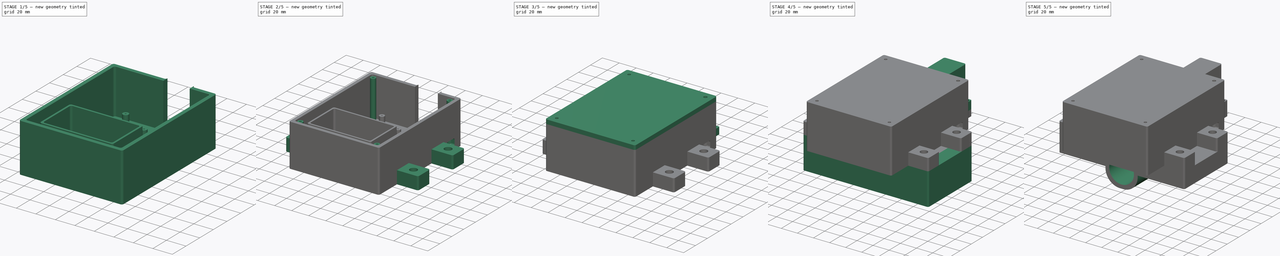
[diagram: build sequence overview — one tinted view per stage of 5, left to right]
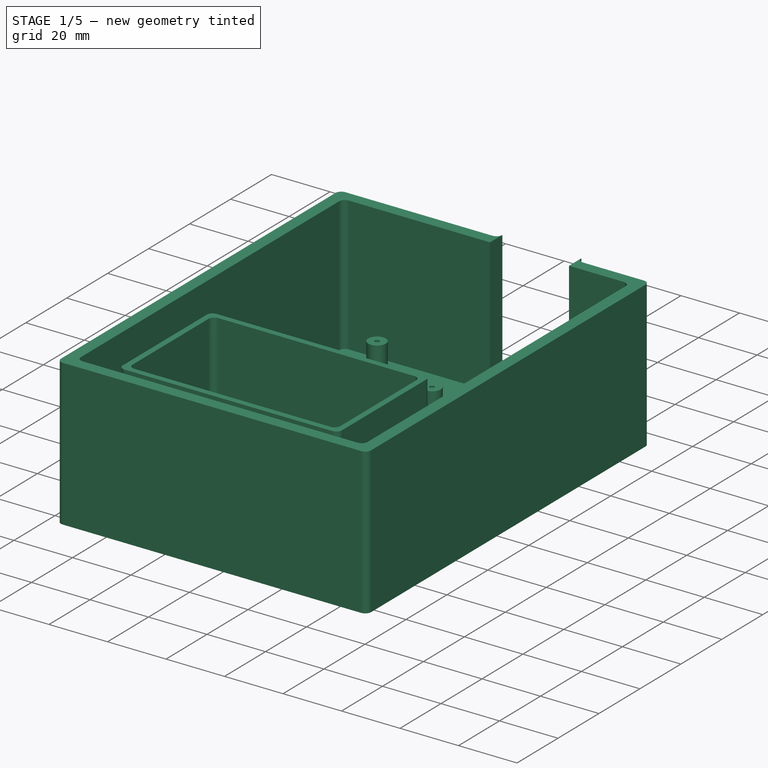
[diagram: stage 1 of 5 — iso view after this stage's code; geometry added in this stage tinted green]
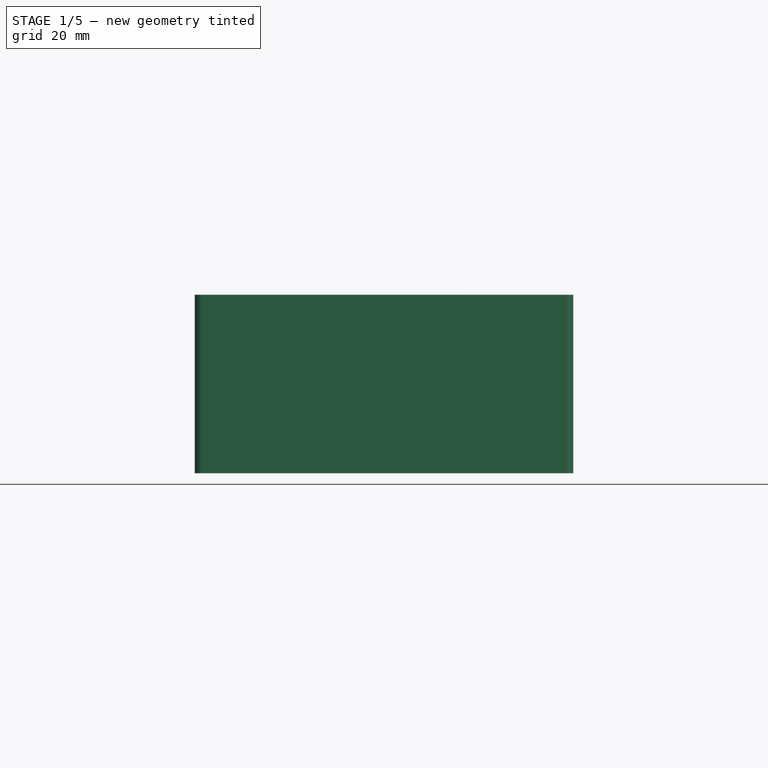
[diagram: stage 1 of 5 — front view after this stage's code; geometry added in this stage tinted green]
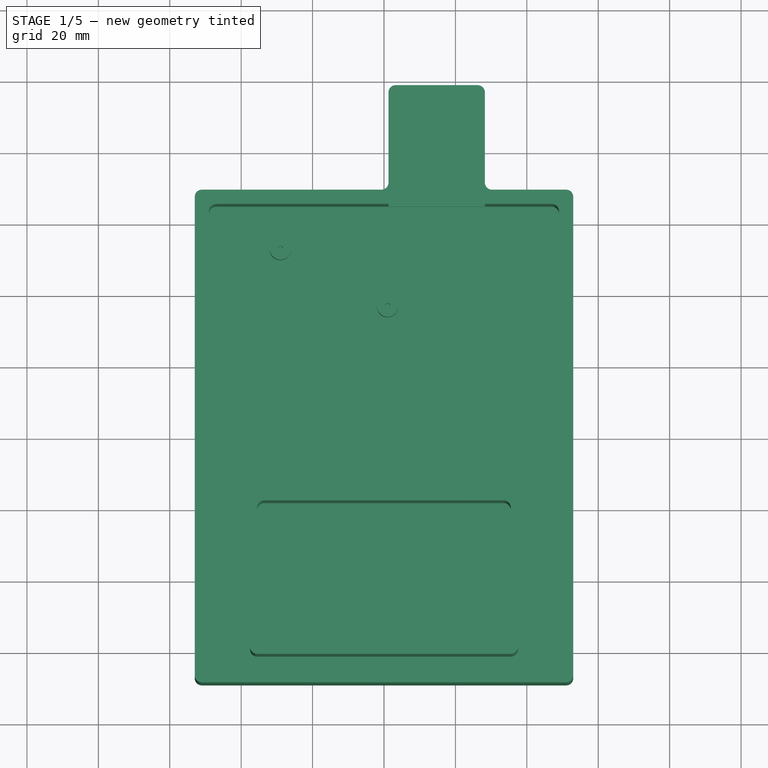
[diagram: stage 1 of 5 — top view after this stage's code; geometry added in this stage tinted green]
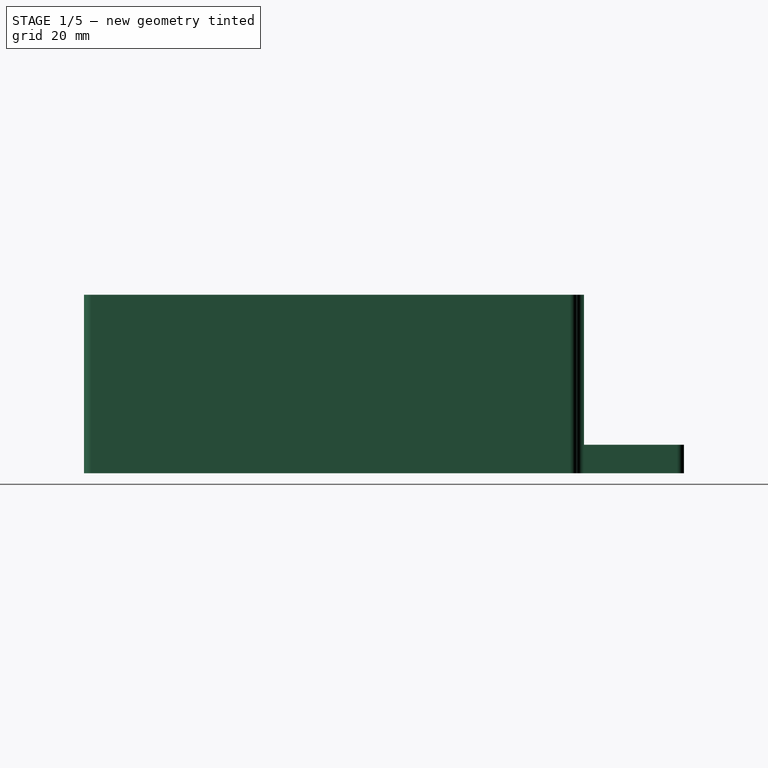
[diagram: stage 1 of 5 — right view after this stage's code; geometry added in this stage tinted green]
FCSTD DOCUMENT  (FreeCAD 0.21R33771 (Git))
Label: LORA + j POLE_869.5_final
License: All rights reserved
LicenseURL: https://en.wikipedia.org/wiki/All_rights_reserved
objects: Sketcher::SketchObject×27, PartDesign::Pocket×14, PartDesign::Pad×12, PartDesign::ShapeBinder×4, PartDesign::Body×3, PartDesign::Fillet×2, PartDesign::Hole×1
note: 92 computed .brp shape members not serialized (recipe doc carries the construction recipe); baked Part::Feature solids carry a one-line shape summary decoded from their .brp

FEATURE [Sketcher::SketchObject] Sketch  label="Base Plate"
  FullyConstrained = true
  MapMode = 5
  Support = -> [XY_Plane]
  sketch-geometry (16):
    g0: LineSegment StartX=-53 StartY=67 StartZ=0 EndX=-53 EndY=-67 EndZ=0
    g1: LineSegment StartX=-51 StartY=-69 StartZ=0 EndX=51 EndY=-69 EndZ=0
    g2: LineSegment StartX=53 StartY=-67 StartZ=0 EndX=53 EndY=67 EndZ=0
    g3: LineSegment StartX=51 StartY=69 StartZ=0 EndX=30.25 EndY=69 EndZ=0
    g4: LineSegment StartX=28.25 StartY=71 StartZ=0 EndX=28.25 EndY=97 EndZ=0
    g5: LineSegment StartX=26.25 StartY=99 StartZ=0 EndX=3.25 EndY=99 EndZ=0
    g6: LineSegment StartX=1.25 StartY=97 StartZ=0 EndX=1.25 EndY=71 EndZ=0
    g7: LineSegment StartX=-0.75 StartY=69 StartZ=0 EndX=-51 EndY=69 EndZ=0
    g8: ArcOfCircle CenterX=-51 CenterY=67 CenterZ=0 NormalX=0 NormalY=0 NormalZ=1 AngleXU=0 Radius=2 StartAngle=1.5708 EndAngle=3.14159
    g9: ArcOfCircle CenterX=-51 CenterY=-67 CenterZ=0 NormalX=0 NormalY=0 NormalZ=1 AngleXU=0 Radius=2 StartAngle=3.14159 EndAngle=4.71239
    g10: ArcOfCircle CenterX=51 CenterY=-67 CenterZ=0 NormalX=0 NormalY=0 NormalZ=1 AngleXU=0 Radius=2 StartAngle=4.71239 EndAngle=6.28319
    g11: ArcOfCircle CenterX=51 CenterY=67 CenterZ=0 NormalX=0 NormalY=0 NormalZ=1 AngleXU=0 Radius=2 StartAngle=3e-16 EndAngle=1.5708
    g12: ArcOfCircle CenterX=-0.75 CenterY=71 CenterZ=0 NormalX=0 NormalY=0 NormalZ=1 AngleXU=0 Radius=2 StartAngle=4.71239 EndAngle=6.28319
    g13: ArcOfCircle CenterX=30.25 CenterY=71 CenterZ=0 NormalX=0 NormalY=0 NormalZ=1 AngleXU=0 Radius=2 StartAngle=3.14159 EndAngle=4.71239
    g14: ArcOfCircle CenterX=3.25 CenterY=97 CenterZ=0 NormalX=0 NormalY=0 NormalZ=1 AngleXU=0 Radius=2 StartAngle=1.5708 EndAngle=3.14159
    g15: ArcOfCircle CenterX=26.25 CenterY=97 CenterZ=0 NormalX=0 NormalY=0 NormalZ=1 AngleXU=0 Radius=2 StartAngle=-2.7e-15 EndAngle=1.5708
  constraints (38):
    c: Vertical(g0)
    c: Horizontal(g1)
    c: Vertical(g2)
    c: Horizontal(g3)
    c: Vertical(g4)
    c: Horizontal(g5)
    c: Vertical(g6)
    c: Horizontal(g7)
    c: Equal(g0,g2)
    c: Tangent(g0,g8) = -1.5708
    c: Tangent(g7,g8) = -1.5708
    c: Tangent(g0,g9) = -1.5708
    c: Tangent(g1,g9) = -1.5708
    c: Tangent(g1,g10) = -1.5708
    c: Tangent(g2,g10) = -1.5708
    c: Tangent(g2,g11) = -1.5708
    c: Tangent(g3,g11) = -1.5708
    c: Equal(g6,g4)
    c: DistanceY(g1,g7) = 138
    c: Radius(g9) = 2
    c: DistanceX(g0,g2) = 106
    c: Tangent(g6,g12) = 1.5708
    c: Tangent(g7,g12) = 1.5708
    c: Tangent(g3,g13) = 1.5708
    c: Tangent(g4,g13) = 1.5708
    c: Equal(g8,g11)
    c: Equal(g8,g12)
    c: Symmetric(g0,g2,g-2)
    c: DistanceX(g0,g6) = 54.25
    c: Symmetric(g7,g1,g-1)
    c: Tangent(g5,g14) = -1.5708
    c: Tangent(g6,g14) = -1.5708
    c: Tangent(g4,g15) = -1.5708
    c: Tangent(g5,g15) = -1.5708
    c: Equal(g12,g13)
    c: Equal(g12,g14)
    c: DistanceX(g6,g4) = 27
    c: DistanceY(g3,g5) = 30
FEATURE [PartDesign::Pad] Pad  label="PaBasePlate Pad"
  Direction = (0,0,1)
  Length = 50
  Length2 = 10
  Profile = -> Sketch
  ReferenceAxis = -> Sketch [N_Axis]
  Type = 0
FEATURE [Sketcher::SketchObject] Sketch001  label="BaasePlad Int"
  ExternalGeometry = -> [Pad]
  FullyConstrained = true
  MapMode = 5
  Placement = pos=(0,0,50) rot=(0,0,1;0rad)
  Support = -> [Pad]
  sketch-geometry (10):
    g0: ArcOfCircle CenterX=-47 CenterY=63 CenterZ=0 NormalX=0 NormalY=0 NormalZ=1 AngleXU=0 Radius=2 StartAngle=1.5708 EndAngle=3.14159
    g1: LineSegment StartX=-47 StartY=65 StartZ=0 EndX=47 EndY=65 EndZ=0
    g2: ArcOfCircle CenterX=47 CenterY=63 CenterZ=0 NormalX=0 NormalY=0 NormalZ=1 AngleXU=0 Radius=2 StartAngle=-9e-16 EndAngle=1.5708
    g3: LineSegment StartX=49 StartY=63 StartZ=0 EndX=49 EndY=-63 EndZ=0
    g4: ArcOfCircle CenterX=47 CenterY=-63 CenterZ=0 NormalX=0 NormalY=0 NormalZ=1 AngleXU=0 Radius=2 StartAngle=4.71239 EndAngle=6.28319
    g5: LineSegment StartX=47 StartY=-65 StartZ=0 EndX=-47 EndY=-65 EndZ=0
    g6: ArcOfCircle CenterX=-47 CenterY=-63 CenterZ=0 NormalX=0 NormalY=0 NormalZ=1 AngleXU=0 Radius=2 StartAngle=3.14159 EndAngle=4.71239
    g7: LineSegment StartX=-49 StartY=-63 StartZ=0 EndX=-49 EndY=63 EndZ=0
    g8: GeomPoint X=-49 Y=65 Z=0
    g9: GeomPoint X=49 Y=-65 Z=0
  constraints (22):
    c: Tangent(g0,g1) = 1.5708
    c: Tangent(g1,g2) = 1.5708
    c: Tangent(g2,g3) = 1.5708
    c: Tangent(g3,g4) = 1.5708
    c: Tangent(g4,g5) = 1.5708
    c: Tangent(g5,g6) = 1.5708
    c: Tangent(g6,g7) = 1.5708
    c: Tangent(g7,g0) = 1.5708
    c: Horizontal(g1)
    c: Horizontal(g5)
    c: Vertical(g3)
    c: Vertical(g7)
    c: Equal(g2,g4)
    c: PointOnObject(g8,g1)
    c: PointOnObject(g8,g7)
    c: PointOnObject(g9,g3)
    c: PointOnObject(g9,g5)
    c: Equal(g-10,g6)
    c: DistanceY(g-10,g5) = 4
    c: DistanceX(g-10,g6) = 4
    c: Symmetric(g5,g0,g-1)
    c: Symmetric(g0,g2,g-2)
FEATURE [PartDesign::Pocket] Pocket  label="PockeBasePlate Pocket"
  BaseFeature = -> Pad
  Direction = (0,0,-1)
  Length = 46
  Length2 = 5
  Profile = -> Sketch001
  ReferenceAxis = -> Sketch001 [N_Axis]
  Type = 0
FEATURE [Sketcher::SketchObject] Sketch002  label="AntennaHolder"
  ExternalGeometry = -> [Pocket]
  FullyConstrained = true
  MapMode = 5
  Placement = pos=(0,0,50) rot=(0,0,1;0rad)
  Support = -> [Pocket]
  sketch-geometry (10):
    g0: ArcOfCircle CenterX=3.25 CenterY=97 CenterZ=0 NormalX=0 NormalY=0 NormalZ=1 AngleXU=0 Radius=2 StartAngle=1.5708 EndAngle=3.14159
    g1: LineSegment StartX=3.25 StartY=99 StartZ=0 EndX=26.25 EndY=99 EndZ=0
    g2: ArcOfCircle CenterX=26.25 CenterY=97 CenterZ=0 NormalX=0 NormalY=0 NormalZ=1 AngleXU=0 Radius=2 StartAngle=-1.8e-15 EndAngle=1.5708
    g3: LineSegment StartX=28.25 StartY=97 StartZ=0 EndX=28.25 EndY=65 EndZ=0
    g4: ArcOfCircle CenterX=26.25 CenterY=65 CenterZ=0 NormalX=0 NormalY=0 NormalZ=1 AngleXU=0 Radius=2 StartAngle=4.71239 EndAngle=6.28319
    g5: LineSegment StartX=26.25 StartY=63 StartZ=0 EndX=3.25 EndY=63 EndZ=0
    g6: ArcOfCircle CenterX=3.25 CenterY=65 CenterZ=0 NormalX=0 NormalY=0 NormalZ=1 AngleXU=0 Radius=2 StartAngle=3.14159 EndAngle=4.71239
    g7: LineSegment StartX=1.25 StartY=65 StartZ=0 EndX=1.25 EndY=97 EndZ=0
    g8: GeomPoint X=1.25 Y=99 Z=0
    g9: GeomPoint X=28.25 Y=63 Z=0
  constraints (22):
    c: Tangent(g0,g1) = 1.5708
    c: Tangent(g1,g2) = 1.5708
    c: Tangent(g2,g3) = 1.5708
    c: Tangent(g3,g4) = 1.5708
    c: Tangent(g4,g5) = 1.5708
    c: Tangent(g5,g6) = 1.5708
    c: Tangent(g6,g7) = 1.5708
    c: Tangent(g7,g0) = 1.5708
    c: Horizontal(g1)
    c: Vertical(g3)
    c: Vertical(g7)
    c: Equal(g2,g4)
    c: Equal(g4,g6)
    c: PointOnObject(g8,g1)
    c: PointOnObject(g8,g7)
    c: PointOnObject(g9,g3)
    c: PointOnObject(g9,g5)
    c: Equal(g-5,g2)
    c: Coincident(g-4,g0)
    c: Coincident(g2,g-6)
    c: Horizontal(g-7,g6)
    c: Horizontal(g5)
FEATURE [PartDesign::Pocket] Pocket001  label="AntennaHolderPocket"
  BaseFeature = -> Pocket
  Direction = (0,0,-1)
  Length = 42
  Length2 = 5
  Profile = -> Sketch002
  ReferenceAxis = -> Sketch002 [N_Axis]
  Type = 0
FEATURE [Sketcher::SketchObject] Sketch003  label="AlimHoldder"
  ExternalGeometry = -> [Pocket]
  FullyConstrained = true
  MapMode = 5
  Placement = pos=(0,0,4) rot=(0,0,1;0rad)
  Support = -> [Pocket]
  sketch-geometry (2):
    g0: Circle CenterX=-29 CenterY=53 CenterZ=0 NormalX=0 NormalY=0 NormalZ=1 AngleXU=0 Radius=3
    g1: Circle CenterX=1 CenterY=37 CenterZ=0 NormalX=0 NormalY=0 NormalZ=1 AngleXU=0 Radius=3
  constraints (6):
    c: Diameter(g0) = 6
    c: Equal(g0,g1)
    c: DistanceY(g1,g0) = 16
    c: DistanceX(g0,g1) = 30
    c: DistanceX(g-5,g0) = 20
    c: DistanceY(g0,g-5) = 12
FEATURE [PartDesign::Pad] Pad001  label="AlimHolder Pad"
  BaseFeature = -> Pocket001
  Direction = (0,0,1)
  Length = 12
  Length2 = 10
  Profile = -> Sketch003
  ReferenceAxis = -> Sketch003 [N_Axis]
  Type = 0
FEATURE [Sketcher::SketchObject] Sketch004  label="AlimHole"
  ExternalGeometry = -> [Pad001]
  FullyConstrained = true
  MapMode = 5
  Placement = pos=(0,0,16) rot=(0,0,1;0rad)
  Support = -> [Pad001]
  sketch-geometry (2):
    g0: Circle CenterX=-29 CenterY=53 CenterZ=0 NormalX=0 NormalY=0 NormalZ=1 AngleXU=0 Radius=0.8
    g1: Circle CenterX=1 CenterY=37 CenterZ=0 NormalX=0 NormalY=0 NormalZ=1 AngleXU=0 Radius=0.8
  constraints (4):
    c: Coincident(g0,g-3)
    c: Coincident(g1,g-4)
    c: Diameter(g0) = 1.6
    c: Equal(g0,g1)
FEATURE [PartDesign::Pocket] Pocket002  label="AlimHole Pocket"
  BaseFeature = -> Pad001
  Direction = (0,0,-1)
  Length = 8
  Length2 = 5
  Profile = -> Sketch004
  ReferenceAxis = -> Sketch004 [N_Axis]
  Type = 0
FEATURE [Sketcher::SketchObject] Sketch005  label="AccuHolder"
  ExternalGeometry = -> [Pocket]
  FullyConstrained = true
  MapMode = 5
  Placement = pos=(0,0,4) rot=(0,0,1;0rad)
  Support = -> [Pocket]
  sketch-geometry (20):
    g0: ArcOfCircle CenterX=-35.5 CenterY=-18 CenterZ=0 NormalX=0 NormalY=0 NormalZ=1 AngleXU=0 Radius=2 StartAngle=1.5708 EndAngle=3.14159
    g1: LineSegment StartX=-35.5 StartY=-16 StartZ=0 EndX=35.5 EndY=-16 EndZ=0
    g2: ArcOfCircle CenterX=35.5 CenterY=-18 CenterZ=0 NormalX=0 NormalY=0 NormalZ=1 AngleXU=0 Radius=2 StartAngle=-1.42e-14 EndAngle=1.5708
    g3: LineSegment StartX=37.5 StartY=-18 StartZ=0 EndX=37.5 EndY=-59 EndZ=0
    g4: ArcOfCircle CenterX=35.5 CenterY=-59 CenterZ=0 NormalX=0 NormalY=0 NormalZ=1 AngleXU=0 Radius=2 StartAngle=4.71239 EndAngle=6.28319
    g5: LineSegment StartX=35.5 StartY=-61 StartZ=0 EndX=-35.5 EndY=-61 EndZ=0
    g6: ArcOfCircle CenterX=-35.5 CenterY=-59 CenterZ=0 NormalX=0 NormalY=0 NormalZ=1 AngleXU=0 Radius=2 StartAngle=3.14159 EndAngle=4.71239
    g7: LineSegment StartX=-37.5 StartY=-59 StartZ=0 EndX=-37.5 EndY=-18 EndZ=0
    g8: GeomPoint X=-37.5 Y=-16 Z=0
    g9: GeomPoint X=37.5 Y=-61 Z=0
    g10: ArcOfCircle CenterX=-33.5 CenterY=-20 CenterZ=0 NormalX=0 NormalY=0 NormalZ=1 AngleXU=0 Radius=2 StartAngle=1.5708 EndAngle=3.14159
    g11: LineSegment StartX=-33.5 StartY=-18 StartZ=0 EndX=33.5 EndY=-18 EndZ=0
    g12: ArcOfCircle CenterX=33.5 CenterY=-20 CenterZ=0 NormalX=0 NormalY=0 NormalZ=1 AngleXU=0 Radius=2 StartAngle=0 EndAngle=1.5708
    g13: LineSegment StartX=35.5 StartY=-20 StartZ=0 EndX=35.5 EndY=-57 EndZ=0
    g14: ArcOfCircle CenterX=33.5 CenterY=-57 CenterZ=0 NormalX=0 NormalY=0 NormalZ=1 AngleXU=0 Radius=2 StartAngle=4.71239 EndAngle=6.28319
    g15: LineSegment StartX=33.5 StartY=-59 StartZ=0 EndX=-33.5 EndY=-59 EndZ=0
    g16: ArcOfCircle CenterX=-33.5 CenterY=-57 CenterZ=0 NormalX=0 NormalY=0 NormalZ=1 AngleXU=0 Radius=2 StartAngle=3.14159 EndAngle=4.71239
    g17: LineSegment StartX=-35.5 StartY=-57 StartZ=0 EndX=-35.5 EndY=-20 EndZ=0
    g18: GeomPoint X=-35.5 Y=-18 Z=0
    g19: GeomPoint X=35.5 Y=-59 Z=0
  constraints (45):
    c: Tangent(g0,g1) = 1.5708
    c: Tangent(g1,g2) = 1.5708
    c: Tangent(g2,g3) = 1.5708
    c: Tangent(g3,g4) = 1.5708
    c: Tangent(g4,g5) = 1.5708
    c: Tangent(g5,g6) = 1.5708
    c: Tangent(g6,g7) = 1.5708
    c: Tangent(g7,g0) = 1.5708
    c: Horizontal(g1)
    c: Horizontal(g5)
    c: Vertical(g3)
    c: Vertical(g7)
    c: Equal(g2,g4)
    c: Equal(g4,g6)
    c: PointOnObject(g8,g1)
    c: PointOnObject(g8,g7)
    c: PointOnObject(g9,g3)
    c: PointOnObject(g9,g5)
    c: Radius(g0) = 2
    c: DistanceX(g0,g2) = 75
    c: Symmetric(g0,g2,g-2)
    c: DistanceY(g5,g0) = 45
    c: DistanceY(g-6,g5) = 4
    c: Tangent(g10,g11) = 1.5708
    c: Tangent(g11,g12) = 1.5708
    c: Tangent(g12,g13) = 1.5708
    c: Tangent(g13,g14) = 1.5708
    c: Tangent(g14,g15) = 1.5708
    c: Tangent(g15,g16) = 1.5708
    c: Tangent(g16,g17) = 1.5708
    c: Tangent(g17,g10) = 1.5708
    c: Horizontal(g11)
    c: Horizontal(g15)
    c: Vertical(g13)
    c: Vertical(g17)
    c: Equal(g10,g12)
    c: Equal(g12,g14)
    c: Equal(g14,g16)
    c: PointOnObject(g18,g11)
    c: PointOnObject(g18,g17)
    c: PointOnObject(g19,g13)
    c: PointOnObject(g19,g15)
    c: Coincident(g18,g0)
    c: Coincident(g19,g4)
    c: Equal(g6,g16)
FEATURE [PartDesign::Pad] Pad002  label="AccuHolder Pad"
  BaseFeature = -> Pocket002
  Direction = (0,0,1)
  Length = 45
  Length2 = 10
  Profile = -> Sketch005
  ReferenceAxis = -> Sketch005 [N_Axis]
  Type = 0
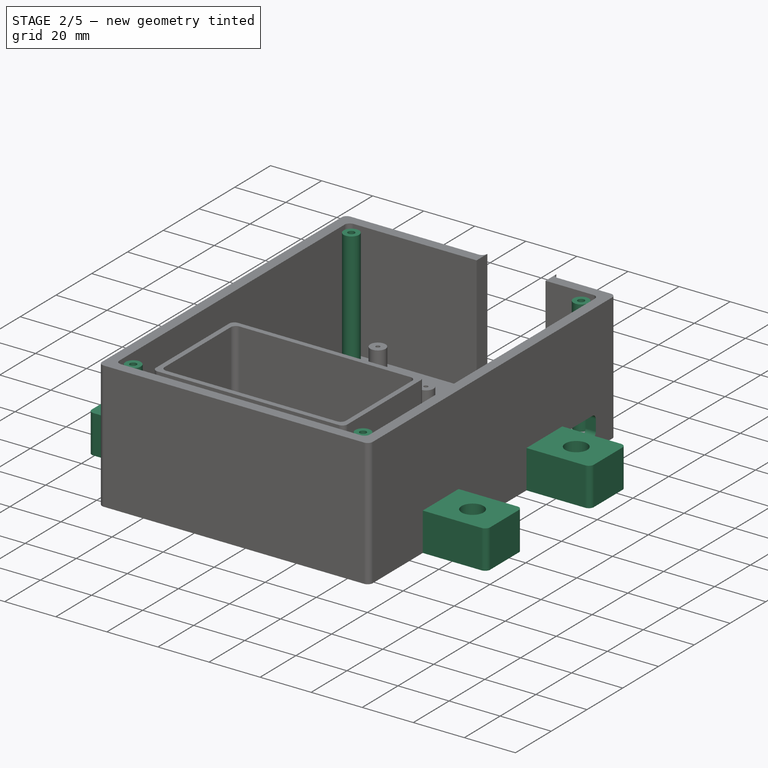
[diagram: stage 2 of 5 — iso view after this stage's code; geometry added in this stage tinted green]
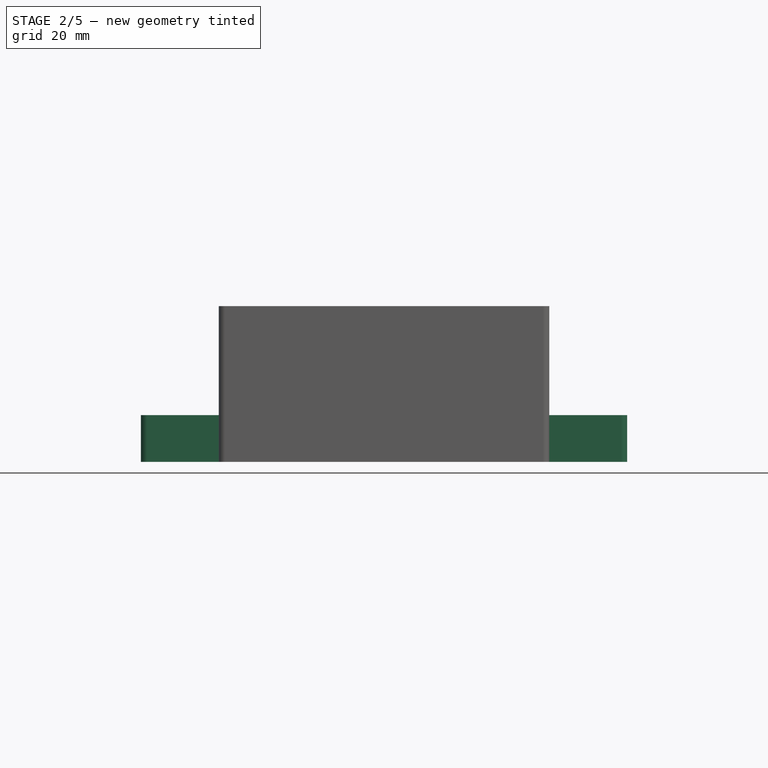
[diagram: stage 2 of 5 — front view after this stage's code; geometry added in this stage tinted green]
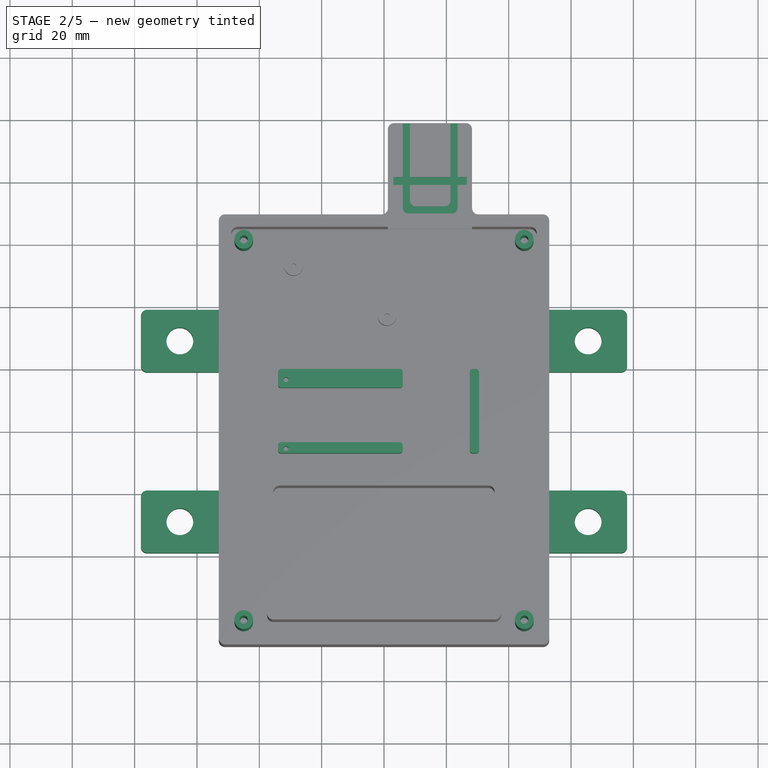
[diagram: stage 2 of 5 — top view after this stage's code; geometry added in this stage tinted green]
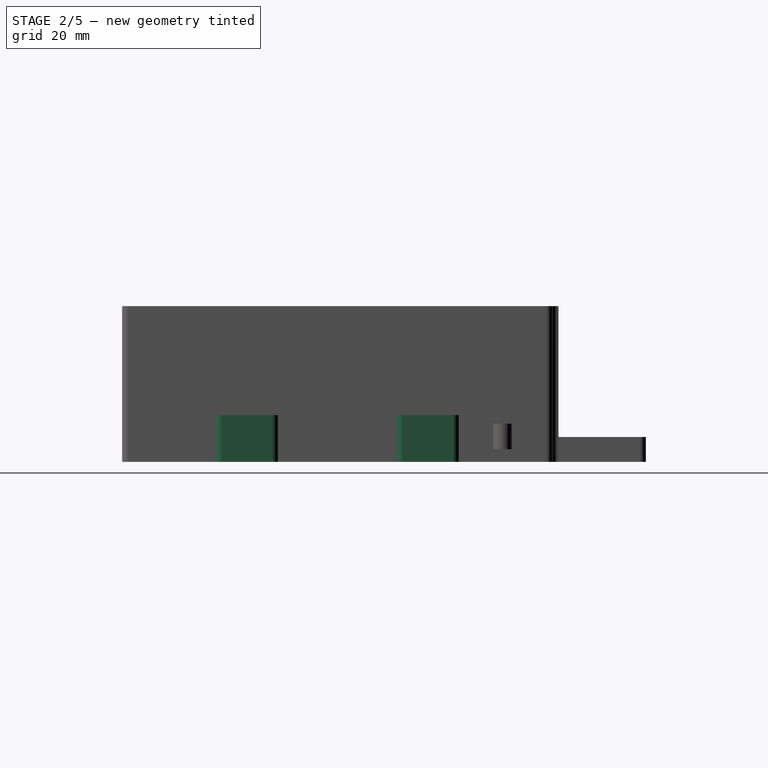
[diagram: stage 2 of 5 — right view after this stage's code; geometry added in this stage tinted green]
FEATURE [Sketcher::SketchObject] Sketch006  label="SupporLora"
  ExternalGeometry = -> [Pocket]
  FullyConstrained = true
  MapMode = 5
  Placement = pos=(0,0,4) rot=(0,0,1;0rad)
  Support = -> [Pocket]
  sketch-geometry (32):
    g0: ArcOfCircle CenterX=28.5 CenterY=19 CenterZ=0 NormalX=0 NormalY=0 NormalZ=1 AngleXU=0 Radius=1 StartAngle=1.5708 EndAngle=3.14159
    g1: LineSegment StartX=28.5 StartY=20 StartZ=0 EndX=29.5 EndY=20 EndZ=0
    g2: ArcOfCircle CenterX=29.5 CenterY=19 CenterZ=0 NormalX=0 NormalY=0 NormalZ=1 AngleXU=0 Radius=1 StartAngle=-9e-16 EndAngle=1.5708
    g3: LineSegment StartX=30.5 StartY=19 StartZ=0 EndX=30.5 EndY=-6 EndZ=0
    g4: ArcOfCircle CenterX=29.5 CenterY=-6 CenterZ=0 NormalX=0 NormalY=0 NormalZ=1 AngleXU=0 Radius=1 StartAngle=4.71239 EndAngle=6.28319
    g5: LineSegment StartX=29.5 StartY=-7 StartZ=0 EndX=28.5 EndY=-7 EndZ=0
    g6: ArcOfCircle CenterX=28.5 CenterY=-6 CenterZ=0 NormalX=0 NormalY=0 NormalZ=1 AngleXU=0 Radius=1 StartAngle=3.14159 EndAngle=4.71239
    g7: LineSegment StartX=27.5 StartY=-6 StartZ=0 EndX=27.5 EndY=19 EndZ=0
    g8: GeomPoint X=27.5 Y=20 Z=0
    g9: GeomPoint X=30.5 Y=-7 Z=0
    g10: ArcOfCircle CenterX=-33 CenterY=19 CenterZ=0 NormalX=0 NormalY=0 NormalZ=1 AngleXU=0 Radius=1 StartAngle=1.5708 EndAngle=3.14159
    g11: LineSegment StartX=-33 StartY=20 StartZ=0 EndX=5 EndY=20 EndZ=0
    g12: ArcOfCircle CenterX=5 CenterY=19 CenterZ=0 NormalX=0 NormalY=0 NormalZ=1 AngleXU=0 Radius=1 StartAngle=1.5e-15 EndAngle=1.5708
    g13: LineSegment StartX=6 StartY=19 StartZ=0 EndX=6 EndY=15 EndZ=0
    g14: ArcOfCircle CenterX=5 CenterY=15 CenterZ=0 NormalX=0 NormalY=0 NormalZ=1 AngleXU=0 Radius=1 StartAngle=4.71239 EndAngle=6.28319
    g15: LineSegment StartX=5 StartY=14 StartZ=0 EndX=-33 EndY=14 EndZ=0
    g16: ArcOfCircle CenterX=-33 CenterY=15 CenterZ=0 NormalX=0 NormalY=0 NormalZ=1 AngleXU=0 Radius=1 StartAngle=3.14159 EndAngle=4.71239
    g17: LineSegment StartX=-34 StartY=15 StartZ=0 EndX=-34 EndY=19 EndZ=0
    g18: GeomPoint X=-34 Y=20 Z=0
    g19: GeomPoint X=6 Y=14 Z=0
    g20: ArcOfCircle CenterX=-33 CenterY=-4.5 CenterZ=0 NormalX=0 NormalY=0 NormalZ=1 AngleXU=0 Radius=1 StartAngle=1.5708 EndAngle=3.14159
    g21: LineSegment StartX=-33 StartY=-3.5 StartZ=0 EndX=5 EndY=-3.5 EndZ=0
    g22: ArcOfCircle CenterX=5 CenterY=-4.5 CenterZ=0 NormalX=0 NormalY=0 NormalZ=1 AngleXU=0 Radius=1 StartAngle=2e-16 EndAngle=1.5708
    g23: LineSegment StartX=6 StartY=-4.5 StartZ=0 EndX=6 EndY=-6 EndZ=0
    g24: ArcOfCircle CenterX=5 CenterY=-6 CenterZ=0 NormalX=0 NormalY=0 NormalZ=1 AngleXU=0 Radius=1 StartAngle=4.71239 EndAngle=6.28319
    g25: LineSegment StartX=5 StartY=-7 StartZ=0 EndX=-33 EndY=-7 EndZ=0
    g26: ArcOfCircle CenterX=-33 CenterY=-6 CenterZ=0 NormalX=0 NormalY=0 NormalZ=1 AngleXU=0 Radius=1 StartAngle=3.14159 EndAngle=4.71239
    g27: LineSegment StartX=-34 StartY=-6 StartZ=0 EndX=-34 EndY=-4.5 EndZ=0
    g28: GeomPoint X=-34 Y=-3.5 Z=0
    g29: GeomPoint X=6 Y=-7 Z=0
    g30: Circle CenterX=-31.44 CenterY=-5.59 CenterZ=0 NormalX=0 NormalY=0 NormalZ=1 AngleXU=0 Radius=0.8
    g31: Circle CenterX=-31.44 CenterY=16.56 CenterZ=0 NormalX=0 NormalY=0 NormalZ=1 AngleXU=0 Radius=0.8
  constraints (78):
    c: Tangent(g0,g1) = 1.5708
    c: Tangent(g1,g2) = 1.5708
    c: Tangent(g2,g3) = 1.5708
    c: Tangent(g3,g4) = 1.5708
    c: Tangent(g4,g5) = 1.5708
    c: Tangent(g5,g6) = 1.5708
    c: Tangent(g6,g7) = 1.5708
    c: Tangent(g7,g0) = 1.5708
    c: Horizontal(g1)
    c: Horizontal(g5)
    c: Vertical(g3)
    c: Vertical(g7)
    c: Equal(g0,g2)
    c: Equal(g2,g4)
    c: Equal(g4,g6)
    c: PointOnObject(g8,g1)
    c: PointOnObject(g8,g7)
    c: PointOnObject(g9,g3)
    c: PointOnObject(g9,g5)
    c: Tangent(g10,g11) = 1.5708
    c: Tangent(g11,g12) = 1.5708
    c: Tangent(g12,g13) = 1.5708
    c: Tangent(g13,g14) = 1.5708
    c: Tangent(g14,g15) = 1.5708
    c: Tangent(g15,g16) = 1.5708
    c: Tangent(g16,g17) = 1.5708
    c: Tangent(g17,g10) = 1.5708
    c: Horizontal(g11)
    c: Horizontal(g15)
    c: Vertical(g13)
    c: Vertical(g17)
    c: Equal(g10,g12)
    c: Equal(g12,g14)
    c: Equal(g14,g16)
    c: PointOnObject(g18,g11)
    c: PointOnObject(g18,g17)
    c: PointOnObject(g19,g13)
    c: PointOnObject(g19,g15)
    c: Tangent(g20,g21) = 1.5708
    c: Tangent(g21,g22) = 1.5708
    c: Tangent(g22,g23) = 1.5708
    c: Tangent(g23,g24) = 1.5708
    c: Tangent(g24,g25) = 1.5708
    c: Tangent(g25,g26) = 1.5708
    c: Tangent(g26,g27) = 1.5708
    c: Tangent(g27,g20) = 1.5708
    c: Horizontal(g21)
    c: Horizontal(g25)
    c: Vertical(g23)
    c: Vertical(g27)
    c: Equal(g20,g22)
    c: Equal(g22,g24)
    c: Equal(g24,g26)
    c: PointOnObject(g28,g21)
    c: PointOnObject(g28,g27)
    c: PointOnObject(g29,g23)
    c: PointOnObject(g29,g25)
    c: Radius(g16) = 1
    c: DistanceY(g15,g10) = 6
    c: DistanceY(g25,g20) = 3.5
    c: DistanceX(g10,g12) = 40
    c: Vertical(g16,g26)
    c: Vertical(g13,g22)
    c: DistanceY(g20,g15) = 17.5
    c: Horizontal(g4,g25)
    c: Horizontal(g1,g10)
    c: Equal(g10,g2)
    c: DistanceX(g6,g3) = 3
    c: DistanceX(g23,g6) = 21.5
    c: DistanceX(g-4,g10) = 15
    c: DistanceY(g10,g-3) = 45
    c: Equal(g16,g20)
    c: DistanceX(g20,g30) = 2.56
    c: Vertical(g30,g31)
    c: DistanceY(g31,g10) = 3.44
    c: Diameter(g31) = 1.6
    c: Equal(g31,g30)
    c: DistanceY(g30,g31) = 22.15
FEATURE [PartDesign::Pad] Pad003  label="SuppoerLora Pad"
  BaseFeature = -> Pad002
  Direction = (0,0,1)
  Length = 12
  Length2 = 10
  Profile = -> Sketch006
  ReferenceAxis = -> Sketch006 [N_Axis]
  Type = 0
FEATURE [Sketcher::SketchObject] Sketch007  label="Rayuers Jpole"
  ExternalGeometry = -> [Pocket001]
  FullyConstrained = true
  MapMode = 5
  Placement = pos=(0,0,8) rot=(0,0,1;0rad)
  Support = -> [Pocket001]
  sketch-geometry (20):
    g0: ArcOfCircle CenterX=10.1 CenterY=115.9 CenterZ=0 NormalX=0 NormalY=0 NormalZ=1 AngleXU=0 Radius=1.8 StartAngle=1.5708 EndAngle=3.14159
    g1: LineSegment StartX=10.1 StartY=117.7 StartZ=0 EndX=19.5 EndY=117.7 EndZ=0
    g2: ArcOfCircle CenterX=19.5 CenterY=115.9 CenterZ=0 NormalX=0 NormalY=0 NormalZ=1 AngleXU=0 Radius=1.8 StartAngle=2.6e-15 EndAngle=1.5708
    g3: LineSegment StartX=21.3 StartY=115.9 StartZ=0 EndX=21.3 EndY=74.1 EndZ=0
    g4: ArcOfCircle CenterX=19.5 CenterY=74.1 CenterZ=0 NormalX=0 NormalY=0 NormalZ=1 AngleXU=0 Radius=1.8 StartAngle=4.71239 EndAngle=6.28319
    g5: LineSegment StartX=19.5 StartY=72.3 StartZ=0 EndX=10.1 EndY=72.3 EndZ=0
    g6: ArcOfCircle CenterX=10.1 CenterY=74.1 CenterZ=0 NormalX=0 NormalY=0 NormalZ=1 AngleXU=0 Radius=1.8 StartAngle=3.14159 EndAngle=4.71239
    g7: LineSegment StartX=8.3 StartY=74.1 StartZ=0 EndX=8.3 EndY=115.9 EndZ=0
    g8: GeomPoint X=8.3 Y=117.7 Z=0
    g9: GeomPoint X=21.3 Y=72.3 Z=0
    g10: ArcOfCircle CenterX=7.8 CenterY=118.2 CenterZ=0 NormalX=0 NormalY=0 NormalZ=1 AngleXU=0 Radius=1.8 StartAngle=1.5708 EndAngle=3.14159
    g11: LineSegment StartX=7.8 StartY=120 StartZ=0 EndX=21.8 EndY=120 EndZ=0
    g12: ArcOfCircle CenterX=21.8 CenterY=118.2 CenterZ=0 NormalX=0 NormalY=0 NormalZ=1 AngleXU=0 Radius=1.8 StartAngle=5.9672e-12 EndAngle=1.5708
    g13: LineSegment StartX=23.6 StartY=118.2 StartZ=0 EndX=23.6 EndY=71.8 EndZ=0
    g14: ArcOfCircle CenterX=21.8 CenterY=71.8 CenterZ=0 NormalX=0 NormalY=0 NormalZ=1 AngleXU=0 Radius=1.8 StartAngle=4.71239 EndAngle=6.28319
    g15: LineSegment StartX=21.8 StartY=70 StartZ=0 EndX=7.8 EndY=70 EndZ=0
    g16: ArcOfCircle CenterX=7.8 CenterY=71.8 CenterZ=0 NormalX=0 NormalY=0 NormalZ=1 AngleXU=0 Radius=1.8 StartAngle=3.14159 EndAngle=4.71239
    g17: LineSegment StartX=6 StartY=71.8 StartZ=0 EndX=6 EndY=118.2 EndZ=0
    g18: GeomPoint X=6 Y=120 Z=0
    g19: GeomPoint X=23.6 Y=70 Z=0
  constraints (48):
    c: Tangent(g0,g1) = 1.5708
    c: Tangent(g1,g2) = 1.5708
    c: Tangent(g2,g3) = 1.5708
    c: Tangent(g3,g4) = 1.5708
    c: Tangent(g4,g5) = 1.5708
    c: Tangent(g5,g6) = 1.5708
    c: Tangent(g6,g7) = 1.5708
    c: Tangent(g7,g0) = 1.5708
    c: Horizontal(g1)
    c: Horizontal(g5)
    c: Vertical(g3)
    c: Vertical(g7)
    c: Equal(g0,g2)
    c: Equal(g2,g4)
    c: Equal(g4,g6)
    c: PointOnObject(g8,g1)
    c: PointOnObject(g8,g7)
    c: PointOnObject(g9,g3)
    c: PointOnObject(g9,g5)
    c: Radius(g0) = 1.8
    c: DistanceX(g0,g2) = 13
    c: Tangent(g10,g11) = 1.5708
    c: Tangent(g11,g12) = 1.5708
    c: Tangent(g12,g13) = 1.5708
    c: Tangent(g13,g14) = 1.5708
    c: Tangent(g14,g15) = 1.5708
    c: Tangent(g15,g16) = 1.5708
    c: Tangent(g16,g17) = 1.5708
    c: Tangent(g17,g10) = 1.5708
    c: Horizontal(g11)
    c: Horizontal(g15)
    c: Vertical(g13)
    c: Vertical(g17)
    c: Equal(g10,g12)
    c: Equal(g12,g14)
    c: Equal(g14,g16)
    c: PointOnObject(g18,g11)
    c: PointOnObject(g18,g17)
    c: PointOnObject(g19,g13)
    c: PointOnObject(g19,g15)
    c: Equal(g6,g16)
    c: DistanceX(g16,g6) = 2.3
    c: DistanceX(g3,g13) = 2.3
    c: DistanceY(g15,g5) = 2.3
    c: DistanceY(g0,g10) = 2.3
    c: DistanceY(g-10,g15) = 5
    c: DistanceX(g-10,g16) = 4.75
    c: DistanceY(g15,g10) = 50
FEATURE [PartDesign::Pocket] Pocket003  label="RayuresJpole Pocket"
  BaseFeature = -> Pad003
  Direction = (0,0,-1)
  Length = 2.5
  Length2 = 5
  Profile = -> Sketch007
  ReferenceAxis = -> Sketch007 [N_Axis]
  Type = 0
FEATURE [Sketcher::SketchObject] Sketch008  label="fix"
  ExternalGeometry = -> [Pocket003]
  FullyConstrained = false
  MapMode = 5
  Support = -> [XY_Plane]
  sketch-geometry (28):
    g0: LineSegment StartX=53 StartY=-19 StartZ=0 EndX=76 EndY=-19 EndZ=0
    g1: LineSegment StartX=78 StartY=-21 StartZ=0 EndX=78 EndY=-37 EndZ=0
    g2: LineSegment StartX=76 StartY=-39 StartZ=0 EndX=53 EndY=-39 EndZ=0
    g3: LineSegment StartX=53 StartY=-39 StartZ=0 EndX=53 EndY=-19 EndZ=0
    g4: LineSegment StartX=-53 StartY=-19 StartZ=0 EndX=-76 EndY=-19 EndZ=0
    g5: LineSegment StartX=-78 StartY=-21 StartZ=0 EndX=-78 EndY=-37 EndZ=0
    g6: LineSegment StartX=-76 StartY=-39 StartZ=0 EndX=-53 EndY=-39 EndZ=0
    g7: LineSegment StartX=-53 StartY=-39 StartZ=0 EndX=-53 EndY=-19 EndZ=0
    g8: Circle CenterX=65.5 CenterY=-29 CenterZ=0 NormalX=0 NormalY=0 NormalZ=1 AngleXU=0 Radius=4.3
    g9: Circle CenterX=-65.5 CenterY=-29 CenterZ=0 NormalX=0 NormalY=0 NormalZ=1 AngleXU=0 Radius=4.3
    g10: LineSegment StartX=-53 StartY=39 StartZ=0 EndX=-76 EndY=39 EndZ=0
    g11: LineSegment StartX=-78 StartY=37 StartZ=0 EndX=-78 EndY=21 EndZ=0
    g12: LineSegment StartX=-76 StartY=19 StartZ=0 EndX=-53 EndY=19 EndZ=0
    g13: LineSegment StartX=-53 StartY=19 StartZ=0 EndX=-53 EndY=39 EndZ=0
    g14: LineSegment StartX=53 StartY=39 StartZ=0 EndX=76 EndY=39 EndZ=0
    g15: LineSegment StartX=78 StartY=37 StartZ=0 EndX=78 EndY=21 EndZ=0
    g16: LineSegment StartX=76 StartY=19 StartZ=0 EndX=53 EndY=19 EndZ=0
    g17: LineSegment StartX=53 StartY=19 StartZ=0 EndX=53 EndY=39 EndZ=0
    g18: Circle CenterX=-65.5 CenterY=29 CenterZ=0 NormalX=0 NormalY=0 NormalZ=1 AngleXU=0 Radius=4.3
    g19: Circle CenterX=65.5 CenterY=29 CenterZ=0 NormalX=0 NormalY=0 NormalZ=1 AngleXU=0 Radius=4.3
    g20: ArcOfCircle CenterX=-76 CenterY=37 CenterZ=0 NormalX=0 NormalY=0 NormalZ=1 AngleXU=0 Radius=2 StartAngle=1.5708 EndAngle=3.14159
    g21: ArcOfCircle CenterX=-76 CenterY=21 CenterZ=0 NormalX=0 NormalY=0 NormalZ=1 AngleXU=0 Radius=2 StartAngle=3.14159 EndAngle=4.71239
    g22: ArcOfCircle CenterX=-76 CenterY=-21 CenterZ=0 NormalX=0 NormalY=0 NormalZ=1 AngleXU=0 Radius=2 StartAngle=1.5708 EndAngle=3.14159
    g23: ArcOfCircle CenterX=-76 CenterY=-37 CenterZ=0 NormalX=0 NormalY=0 NormalZ=1 AngleXU=0 Radius=2 StartAngle=3.14159 EndAngle=4.71239
    g24: ArcOfCircle CenterX=76 CenterY=-37 CenterZ=0 NormalX=0 NormalY=0 NormalZ=1 AngleXU=0 Radius=2 StartAngle=4.71239 EndAngle=6.28319
    g25: ArcOfCircle CenterX=76 CenterY=-21 CenterZ=0 NormalX=0 NormalY=0 NormalZ=1 AngleXU=0 Radius=2 StartAngle=-9e-16 EndAngle=1.5708
    g26: ArcOfCircle CenterX=76 CenterY=21 CenterZ=0 NormalX=0 NormalY=0 NormalZ=1 AngleXU=0 Radius=2 StartAngle=4.71239 EndAngle=6.28319
    g27: ArcOfCircle CenterX=76 CenterY=37 CenterZ=0 NormalX=0 NormalY=0 NormalZ=1 AngleXU=0 Radius=2 StartAngle=-1.8e-15 EndAngle=1.5708
  constraints (73):
    c: PointOnObject(g0,g-8)
    c: Horizontal(g0)
    c: Vertical(g1)
    c: Horizontal(g2)
    c: Coincident(g2,g3)
    c: Vertical(g3)
    c: PointOnObject(g4,g-3)
    c: Horizontal(g4)
    c: Vertical(g5)
    c: Horizontal(g6)
    c: Coincident(g7,g6)
    c: PointOnObject(g7,g4)
    c: PointOnObject(g6,g-3)
    c: Diameter(g8) = 8.6
    c: DistanceX(g9,g8) = 131
    c: Coincident(g3,g0)
    c: Horizontal(g4,g0)
    c: Horizontal(g6,g2)
    c: Symmetric(g9,g8,g-2)
    c: Equal(g2,g6)
    c: PointOnObject(g10,g-3)
    c: Horizontal(g10)
    c: Vertical(g11)
    c: PointOnObject(g12,g-3)
    c: Horizontal(g12)
    c: Coincident(g12,g13)
    c: Coincident(g13,g10)
    c: PointOnObject(g14,g-8)
    c: Horizontal(g14)
    c: Vertical(g15)
    c: PointOnObject(g16,g-8)
    c: Horizontal(g16)
    c: Coincident(g16,g17)
    c: Coincident(g17,g14)
    c: Equal(g9,g18)
    c: Equal(g8,g19)
    c: Equal(g1,g15)
    c: Equal(g16,g2)
    c: Equal(g6,g12)
    c: Equal(g5,g11)
    c: Horizontal(g10,g14)
    c: Symmetric(g18,g19,g-2)
    c: DistanceY(g9,g18) = 58
    c: Symmetric(g9,g18,g-1)
    c: Equal(g19,g18)
    c: Tangent(g10,g20) = -1.5708
    c: Tangent(g11,g20) = -1.5708
    c: Tangent(g11,g21) = -1.5708
    c: Tangent(g12,g21) = -1.5708
    c: Radius(g21) = 2
    c: Equal(g21,g20)
    c: Tangent(g4,g22) = -1.5708
    c: Tangent(g5,g22) = -1.5708
    c: Tangent(g5,g23) = -1.5708
    c: Tangent(g6,g23) = -1.5708
    c: Tangent(g1,g24) = 1.5708
    c: Tangent(g2,g24) = 1.5708
    c: Tangent(g0,g25) = 1.5708
    c: Tangent(g1,g25) = 1.5708
    c: Tangent(g15,g26) = 1.5708
    c: Tangent(g16,g26) = 1.5708
    c: Equal(g21,g22)
    c: Equal(g22,g23)
    c: Equal(g23,g24)
    c: Equal(g24,g25)
    c: Equal(g24,g26)
    c: DistanceY(g6,g9) = 10
    c: DistanceY(g2,g0) = 20
    c: DistanceY(g12,g18) = 10
    c: DistanceX(g5,g6) = 25
    c: Tangent(g14,g27) = 1.5708
    c: Tangent(g15,g27) = 1.5708
    c: Equal(g26,g27)
FEATURE [PartDesign::Pad] Pad004  label="Fix Pad"
  BaseFeature = -> Pocket003
  Direction = (0,0,1)
  Length = 15
  Length2 = 10
  Profile = -> Sketch008
  ReferenceAxis = -> Sketch008 [N_Axis]
  Type = 0
FEATURE [Sketcher::SketchObject] Sketch009  label="fixationCouvercle"
  ExternalGeometry = -> [Pocket]
  FullyConstrained = true
  MapMode = 5
  Placement = pos=(0,0,4) rot=(0,0,1;0rad)
  Support = -> [Pocket]
  sketch-geometry (8):
    g0: Circle CenterX=-45 CenterY=-61 CenterZ=0 NormalX=0 NormalY=0 NormalZ=1 AngleXU=0 Radius=3
    g1: Circle CenterX=45 CenterY=-61 CenterZ=0 NormalX=0 NormalY=0 NormalZ=1 AngleXU=0 Radius=3
    g2: Circle CenterX=-45 CenterY=61 CenterZ=0 NormalX=0 NormalY=0 NormalZ=1 AngleXU=0 Radius=3
    g3: Circle CenterX=45 CenterY=61 CenterZ=0 NormalX=0 NormalY=0 NormalZ=1 AngleXU=0 Radius=3
    g4: Circle CenterX=-45 CenterY=61 CenterZ=0 NormalX=0 NormalY=0 NormalZ=1 AngleXU=0 Radius=1.3
    g5: Circle CenterX=45 CenterY=61 CenterZ=0 NormalX=0 NormalY=0 NormalZ=1 AngleXU=0 Radius=1.3
    g6: Circle CenterX=45 CenterY=-61 CenterZ=0 NormalX=0 NormalY=0 NormalZ=1 AngleXU=0 Radius=1.3
    g7: Circle CenterX=-45 CenterY=-61 CenterZ=0 NormalX=0 NormalY=0 NormalZ=1 AngleXU=0 Radius=1.3
  constraints (17):
    c: Diameter(g0) = 6
    c: Equal(g0,g1)
    c: Equal(g2,g0)
    c: Equal(g0,g3)
    c: Symmetric(g2,g3,g-2)
    c: Symmetric(g0,g1,g-2)
    c: Symmetric(g2,g0,g-1)
    c: DistanceX(g-5,g2) = 4
    c: DistanceY(g2,g-4) = 4
    c: Coincident(g4,g2)
    c: Diameter(g4) = 2.6
    c: Coincident(g5,g3)
    c: Coincident(g6,g1)
    c: Coincident(g7,g0)
    c: Equal(g4,g5)
    c: Equal(g4,g7)
    c: Equal(g7,g6)
FEATURE [PartDesign::Pad] Pad005  label="FixatioCouvercle Pad"
  BaseFeature = -> Pad004
  Direction = (0,0,1)
  Length = 45
  Length2 = 10
  Profile = -> Sketch009
  ReferenceAxis = -> Sketch009 [N_Axis]
  Type = 0
FEATURE [Sketcher::SketchObject] Sketch010  label="alim"
  ExternalGeometry = -> [Pad005]
  FullyConstrained = true
  MapMode = 5
  Placement = pos=(53,0,0) rot=(0.57735,0.57735,0.57735;2.0944rad)
  Support = -> [Pad005]
  sketch-geometry (6):
    g0: LineSegment StartX=57.8 StartY=6.1 StartZ=0 EndX=57.8 EndY=10.3 EndZ=0
    g1: LineSegment StartX=55.8 StartY=12.3 StartZ=0 EndX=42 EndY=12.3 EndZ=0
    g2: LineSegment StartX=42 StartY=12.3 StartZ=0 EndX=42 EndY=4.1 EndZ=0
    g3: LineSegment StartX=42 StartY=4.1 StartZ=0 EndX=55.8 EndY=4.1 EndZ=0
    g4: ArcOfCircle CenterX=55.8 CenterY=10.3 CenterZ=0 NormalX=0 NormalY=0 NormalZ=1 AngleXU=0 Radius=2 StartAngle=0 EndAngle=1.5708
    g5: ArcOfCircle CenterX=55.8 CenterY=6.1 CenterZ=0 NormalX=0 NormalY=0 NormalZ=1 AngleXU=0 Radius=2 StartAngle=4.71239 EndAngle=6.28319
  constraints (16):
    c: Vertical(g0)
    c: Horizontal(g1)
    c: Coincident(g1,g2)
    c: Vertical(g2)
    c: Coincident(g2,g3)
    c: DistanceY(g2,g1) = 8.2
    c: Tangent(g0,g4) = -1.5708
    c: Tangent(g1,g4) = -1.5708
    c: Tangent(g0,g5) = -1.5708
    c: Tangent(g3,g5) = -1.5708
    c: Radius(g4) = 2
    c: Equal(g4,g5)
    c: DistanceY(g-6,g3) = 4.1
    c: DistanceX(g1,g0) = 15.8
    c: Vertical(g1,g3)
    c: DistanceX(g-3,g2) = 3
FEATURE [PartDesign::Pocket] Pocket004  label="alim pocket"
  BaseFeature = -> Pad005
  Direction = (-1,0,0)
  Length = 4
  Length2 = 5
  Profile = -> Sketch010
  ReferenceAxis = -> Sketch010 [N_Axis]
  Type = 0
FEATURE [Sketcher::SketchObject] Sketch011  label="coax solder"
  ExternalGeometry = -> [Pocket004]
  FullyConstrained = true
  MapMode = 5
  Placement = pos=(0,0,8) rot=(0,0,1;0rad)
  Support = -> [Pocket004]
  sketch-geometry (12):
    g0: LineSegment StartX=8.3 StartY=81.7 StartZ=0 EndX=21.3 EndY=81.7 EndZ=0
    g1: LineSegment StartX=21.3 StartY=81.7 StartZ=0 EndX=21.3 EndY=79.2 EndZ=0
    g2: LineSegment StartX=21.3 StartY=79.2 StartZ=0 EndX=8.3 EndY=79.2 EndZ=0
    g3: LineSegment StartX=8.3 StartY=79.2 StartZ=0 EndX=8.3 EndY=81.7 EndZ=0
    g4: LineSegment StartX=6 StartY=81.7 StartZ=0 EndX=3 EndY=81.7 EndZ=0
    g5: LineSegment StartX=3 StartY=81.7 StartZ=0 EndX=3 EndY=79.2 EndZ=0
    g6: LineSegment StartX=3 StartY=79.2 StartZ=0 EndX=6 EndY=79.2 EndZ=0
    g7: LineSegment StartX=6 StartY=79.2 StartZ=0 EndX=6 EndY=81.7 EndZ=0
    g8: LineSegment StartX=23.6 StartY=81.7 StartZ=0 EndX=26.6 EndY=81.7 EndZ=0
    g9: LineSegment StartX=26.6 StartY=81.7 StartZ=0 EndX=26.6 EndY=79.2 EndZ=0
    g10: LineSegment StartX=26.6 StartY=79.2 StartZ=0 EndX=23.6 EndY=79.2 EndZ=0
    g11: LineSegment StartX=23.6 StartY=79.2 StartZ=0 EndX=23.6 EndY=81.7 EndZ=0
  constraints (36):
    c: Coincident(g0,g1)
    c: Coincident(g1,g2)
    c: Coincident(g2,g3)
    c: Coincident(g3,g0)
    c: Horizontal(g0)
    c: Horizontal(g2)
    c: Vertical(g1)
    c: Vertical(g3)
    c: PointOnObject(g0,g-9)
    c: PointOnObject(g1,g-7)
    c: Coincident(g4,g5)
    c: Coincident(g5,g6)
    c: Coincident(g6,g7)
    c: Coincident(g7,g4)
    c: Horizontal(g4)
    c: Horizontal(g6)
    c: Vertical(g5)
    c: Vertical(g7)
    c: PointOnObject(g4,g-4)
    c: Coincident(g8,g9)
    c: Coincident(g9,g10)
    c: Coincident(g10,g11)
    c: Coincident(g11,g8)
    c: Horizontal(g8)
    c: Horizontal(g10)
    c: Vertical(g9)
    c: Vertical(g11)
    c: PointOnObject(g8,g-6)
    c: DistanceY(g-5,g6) = 9.2
    c: Horizontal(g6,g2)
    c: Horizontal(g1,g10)
    c: DistanceY(g5,g4) = 2.5
    c: Horizontal(g4,g0)
    c: Horizontal(g0,g8)
    c: DistanceX(g5,g6) = 3
    c: Equal(g4,g8)
FEATURE [PartDesign::Pocket] Pocket005  label="coax pocket"
  BaseFeature = -> Pocket004
  Direction = (0,0,-1)
  Length = 1.5
  Length2 = 5
  Profile = -> Sketch011
  ReferenceAxis = -> Sketch011 [N_Axis]
  Type = 0
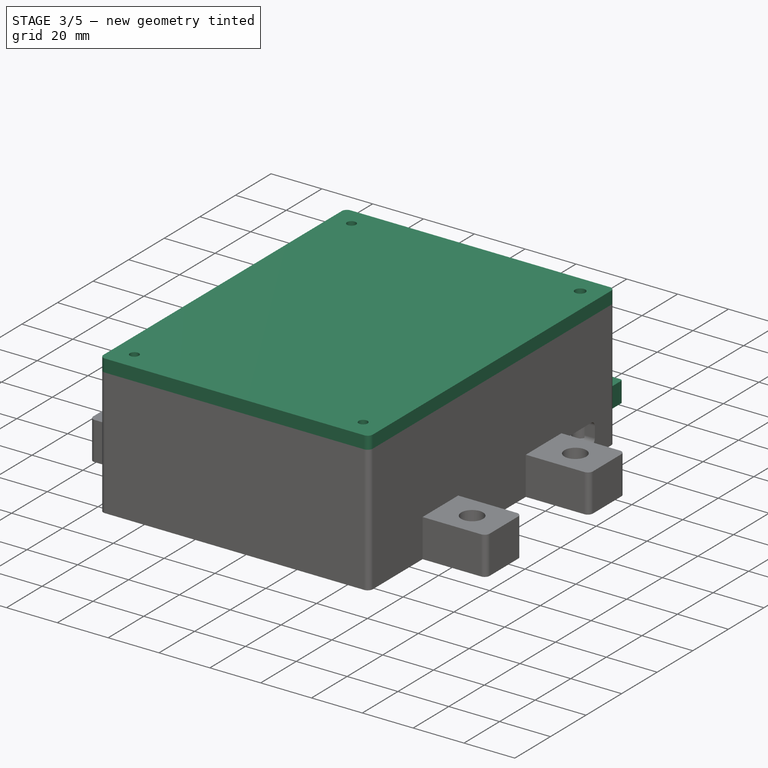
[diagram: stage 3 of 5 — iso view after this stage's code; geometry added in this stage tinted green]
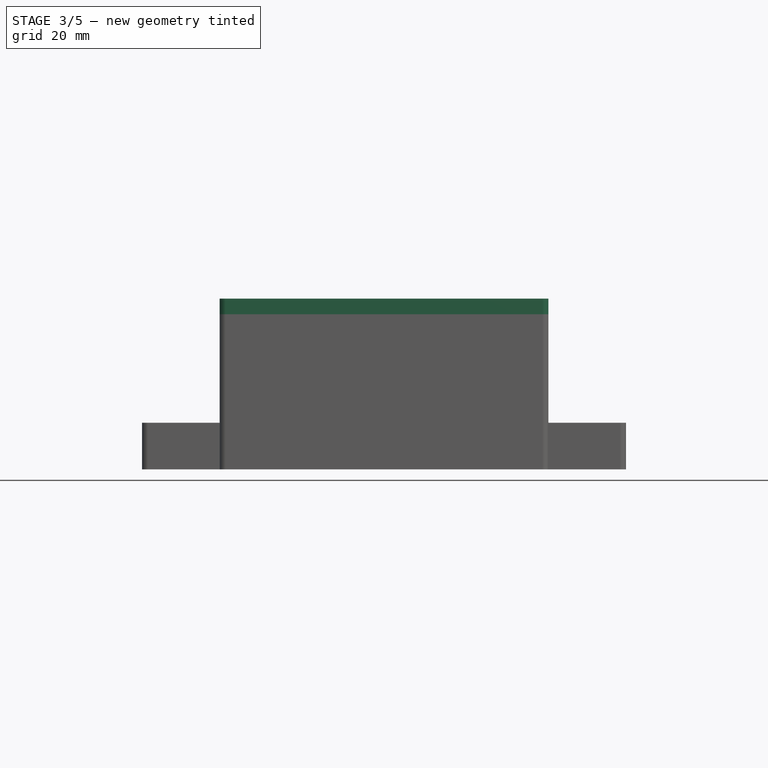
[diagram: stage 3 of 5 — front view after this stage's code; geometry added in this stage tinted green]
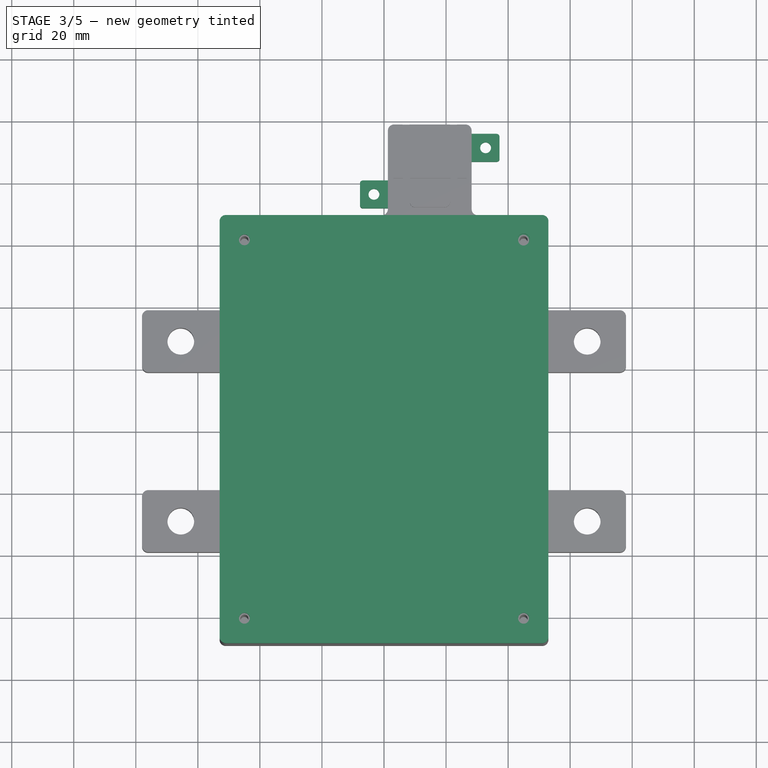
[diagram: stage 3 of 5 — top view after this stage's code; geometry added in this stage tinted green]
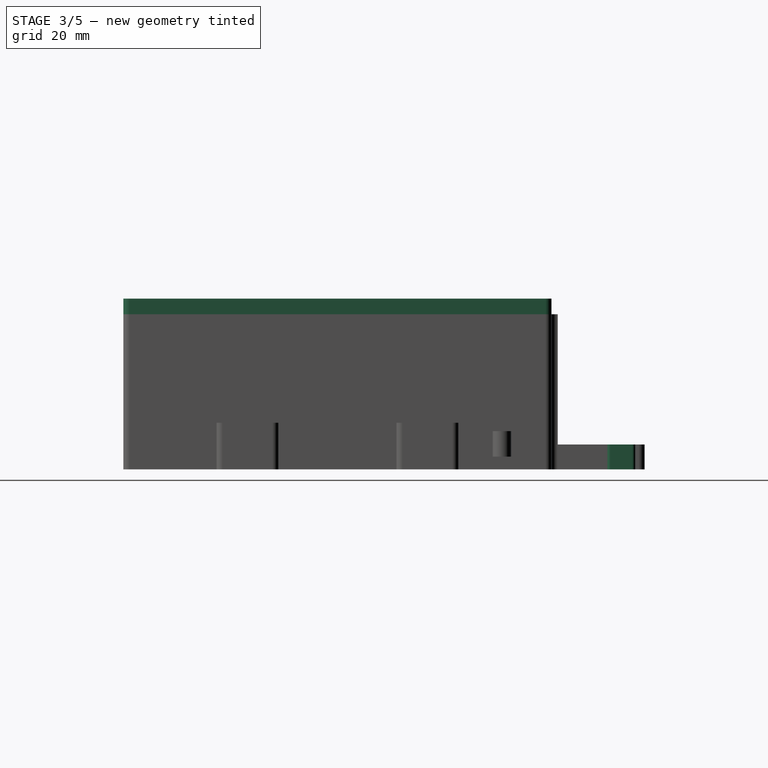
[diagram: stage 3 of 5 — right view after this stage's code; geometry added in this stage tinted green]
FEATURE [PartDesign::Body] Body001  label="Support mat"
  Group = -> [CopyPad,CopyPad004,Sketch013,Pad006,Sketch014,Pocket006,Sketch015,Pocket007,Fillet,Fillet001,Sketch016,Pocket008,Sketch017,Hole]
  Origin = -> Origin001
  Tip = -> Hole
FEATURE [Sketcher::SketchObject] Sketch018
  ExternalGeometry = -> [Sketch]
  FullyConstrained = true
  MapMode = 5
  Placement = pos=(0,0,0) rot=(1,0,0;3.14159rad)
  Support = -> [Pad]
  sketch-geometry (14):
    g0: LineSegment StartX=1.25 StartY=-72 StartZ=0 EndX=-6.75 EndY=-72 EndZ=0
    g1: LineSegment StartX=-7.75 StartY=-73 StartZ=0 EndX=-7.75 EndY=-80 EndZ=0
    g2: LineSegment StartX=-6.75 StartY=-81 StartZ=0 EndX=1.25 EndY=-81 EndZ=0
    g3: LineSegment StartX=1.25 StartY=-81 StartZ=0 EndX=1.25 EndY=-72 EndZ=0
    g4: ArcOfCircle CenterX=-6.75 CenterY=-80 CenterZ=0 NormalX=0 NormalY=0 NormalZ=1 AngleXU=0 Radius=1 StartAngle=3.14159 EndAngle=4.71239
    g5: ArcOfCircle CenterX=-6.75 CenterY=-73 CenterZ=0 NormalX=0 NormalY=0 NormalZ=1 AngleXU=0 Radius=1 StartAngle=1.5708 EndAngle=3.14159
    g6: LineSegment StartX=28.25 StartY=-87 StartZ=0 EndX=36.25 EndY=-87 EndZ=0
    g7: LineSegment StartX=37.25 StartY=-88 StartZ=0 EndX=37.25 EndY=-95 EndZ=0
    g8: LineSegment StartX=36.25 StartY=-96 StartZ=0 EndX=28.25 EndY=-96 EndZ=0
    g9: LineSegment StartX=28.25 StartY=-96 StartZ=0 EndX=28.25 EndY=-87 EndZ=0
    g10: ArcOfCircle CenterX=36.25 CenterY=-88 CenterZ=0 NormalX=0 NormalY=0 NormalZ=1 AngleXU=0 Radius=1 StartAngle=-1.8e-15 EndAngle=1.5708
    g11: ArcOfCircle CenterX=36.25 CenterY=-95 CenterZ=0 NormalX=0 NormalY=0 NormalZ=1 AngleXU=0 Radius=1 StartAngle=4.71239 EndAngle=6.28319
    g12: Circle CenterX=32.75 CenterY=-91.5 CenterZ=0 NormalX=0 NormalY=0 NormalZ=1 AngleXU=0 Radius=1.75
    g13: Circle CenterX=-3.25 CenterY=-76.5 CenterZ=0 NormalX=0 NormalY=0 NormalZ=1 AngleXU=0 Radius=1.75
  constraints (38):
    c: Coincident(g2,g3)
    c: Coincident(g3,g0)
    c: Horizontal(g0)
    c: Horizontal(g2)
    c: Vertical(g1)
    c: Vertical(g3)
    c: PointOnObject(g0,g-3)
    c: Tangent(g1,g4) = -1.5708
    c: Tangent(g2,g4) = -1.5708
    c: Tangent(g0,g5) = -1.5708
    c: Tangent(g1,g5) = -1.5708
    c: Radius(g4) = 1
    c: Equal(g4,g5)
    c: DistanceY(g2,g0) = 9
    c: DistanceX(g1,g2) = 9
    c: DistanceY(g0,g-3) = 1
    c: Coincident(g8,g9)
    c: Coincident(g9,g6)
    c: Horizontal(g6)
    c: Horizontal(g8)
    c: Vertical(g7)
    c: Vertical(g9)
    c: PointOnObject(g6,g-7)
    c: Tangent(g6,g10) = 1.5708
    c: Tangent(g7,g10) = 1.5708
    c: Tangent(g7,g11) = 1.5708
    c: Tangent(g8,g11) = 1.5708
    c: Equal(g4,g11)
    c: Equal(g11,g10)
    c: Equal(g1,g7)
    c: Equal(g8,g2)
    c: DistanceY(g-7,g8) = 1
    c: Diameter(g12) = 3.5
    c: DistanceY(g8,g12) = 4.5
    c: DistanceX(g8,g12) = 4.5
    c: Equal(g12,g13)
    c: DistanceY(g2,g13) = 4.5
    c: DistanceX(g1,g13) = 4.5
FEATURE [PartDesign::Pad] Pad007
  BaseFeature = -> Pocket005
  Direction = (0,0,-1)
  Length = 8
  Length2 = 10
  Profile = -> Sketch018
  ReferenceAxis = -> Sketch018 [N_Axis]
  Reversed = true
  Type = 0
FEATURE [Sketcher::SketchObject] Sketch019
  ExternalGeometry = -> [Pad007]
  FullyConstrained = true
  MapMode = 5
  Placement = pos=(0,0,0) rot=(1,0,0;3.14159rad)
  Support = -> [Pad007]
  sketch-geometry (14):
    g0: LineSegment StartX=-3.25 StartY=-79.7043 StartZ=0 EndX=-0.475 EndY=-78.1021 EndZ=0
    g1: LineSegment StartX=-0.475 StartY=-78.1021 StartZ=0 EndX=-0.475 EndY=-74.8979 EndZ=0
    g2: LineSegment StartX=-0.475 StartY=-74.8979 StartZ=0 EndX=-3.25 EndY=-73.2957 EndZ=0
    g3: LineSegment StartX=-3.25 StartY=-73.2957 StartZ=0 EndX=-6.025 EndY=-74.8979 EndZ=0
    g4: LineSegment StartX=-6.025 StartY=-74.8979 StartZ=0 EndX=-6.025 EndY=-78.1021 EndZ=0
    g5: LineSegment StartX=-6.025 StartY=-78.1021 StartZ=0 EndX=-3.25 EndY=-79.7043 EndZ=0
    g6: Circle CenterX=-3.25 CenterY=-76.5 CenterZ=0 NormalX=0 NormalY=0 NormalZ=1 AngleXU=0 Radius=3.20429
    g7: LineSegment StartX=35.525 StartY=-93.1021 StartZ=0 EndX=35.525 EndY=-89.8979 EndZ=0
    g8: LineSegment StartX=35.525 StartY=-89.8979 StartZ=0 EndX=32.75 EndY=-88.2957 EndZ=0
    g9: LineSegment StartX=32.75 StartY=-88.2957 StartZ=0 EndX=29.975 EndY=-89.8979 EndZ=0
    g10: LineSegment StartX=29.975 StartY=-89.8979 StartZ=0 EndX=29.975 EndY=-93.1021 EndZ=0
    g11: LineSegment StartX=29.975 StartY=-93.1021 StartZ=0 EndX=32.75 EndY=-94.7043 EndZ=0
    g12: LineSegment StartX=32.75 StartY=-94.7043 StartZ=0 EndX=35.525 EndY=-93.1021 EndZ=0
    g13: Circle CenterX=32.75 CenterY=-91.5 CenterZ=0 NormalX=0 NormalY=0 NormalZ=1 AngleXU=0 Radius=3.20429
  constraints (32):
    c: Coincident(g0,g1)
    c: Coincident(g1,g2)
    c: Coincident(g2,g3)
    c: Coincident(g3,g4)
    c: Coincident(g4,g5)
    c: Coincident(g5,g0)
    c: Equal(g0, g1-g5) x5
    c: PointOnObject(g0,g6)
    c: PointOnObject(g1,g6)
    c: PointOnObject(g2,g6)
    c: PointOnObject(g3,g6)
    c: PointOnObject(g4,g6)
    c: PointOnObject(g5,g6)
    c: Coincident(g6,g-3)
    c: Vertical(g4)
    c: DistanceX(g4,g0) = 5.55
    c: Coincident(g7,g8)
    c: Coincident(g8,g9)
    c: Coincident(g9,g10)
    c: Coincident(g10,g11)
    c: Coincident(g11,g12)
    c: Coincident(g12,g7)
    c: Equal(g7, g8-g12) x5
    c: PointOnObject(g7,g13)
    c: PointOnObject(g8,g13)
    c: PointOnObject(g9,g13)
    c: PointOnObject(g10,g13)
    c: PointOnObject(g11,g13)
    c: PointOnObject(g12,g13)
    c: Coincident(g13,g-4)
    c: Vertical(g7)
    c: DistanceX(g10,g7) = 5.55
FEATURE [PartDesign::Pocket] Pocket009
  BaseFeature = -> Pad007
  Direction = (0,0,1)
  Length = 2.5
  Length2 = 5
  Profile = -> Sketch019
  ReferenceAxis = -> Sketch019 [N_Axis]
  Type = 0
FEATURE [PartDesign::ShapeBinder] ShapeBinder001
  Support = -> [Pocket009]
  TraceSupport = false
FEATURE [PartDesign::ShapeBinder] ShapeBinder
  Support = -> [Pocket009]
  TraceSupport = false
FEATURE [Sketcher::SketchObject] Sketch020  label="main cover"
  ExternalGeometry = -> [ShapeBinder,ShapeBinder001]
  FullyConstrained = false
  MapMode = 5
  Placement = pos=(0,0,50) rot=(0,0,1;0rad)
  Support = -> [ShapeBinder]
  sketch-geometry (14):
    g0: ArcOfCircle CenterX=-51 CenterY=67 CenterZ=0 NormalX=0 NormalY=0 NormalZ=1 AngleXU=0 Radius=2 StartAngle=1.5708 EndAngle=3.14159
    g1: LineSegment StartX=-51 StartY=69 StartZ=0 EndX=51 EndY=69 EndZ=0
    g2: ArcOfCircle CenterX=51 CenterY=67 CenterZ=0 NormalX=0 NormalY=0 NormalZ=1 AngleXU=0 Radius=2 StartAngle=9e-16 EndAngle=1.5708
    g3: LineSegment StartX=53 StartY=67 StartZ=0 EndX=53 EndY=-67 EndZ=0
    g4: ArcOfCircle CenterX=51 CenterY=-67 CenterZ=0 NormalX=0 NormalY=0 NormalZ=1 AngleXU=0 Radius=2 StartAngle=4.71239 EndAngle=6.28319
    g5: LineSegment StartX=51 StartY=-69 StartZ=0 EndX=-51 EndY=-69 EndZ=0
    g6: ArcOfCircle CenterX=-51 CenterY=-67 CenterZ=0 NormalX=0 NormalY=0 NormalZ=1 AngleXU=0 Radius=2 StartAngle=3.14159 EndAngle=4.71239
    g7: LineSegment StartX=-53 StartY=-67 StartZ=0 EndX=-53 EndY=67 EndZ=0
    g8: GeomPoint X=-53 Y=69 Z=0
    g9: GeomPoint X=53 Y=-69 Z=0
    g10: Circle CenterX=-45 CenterY=-61 CenterZ=0 NormalX=0 NormalY=0 NormalZ=1 AngleXU=0 Radius=1.75
    g11: Circle CenterX=45 CenterY=-61 CenterZ=0 NormalX=0 NormalY=0 NormalZ=1 AngleXU=0 Radius=1.75
    g12: Circle CenterX=-45 CenterY=61 CenterZ=0 NormalX=0 NormalY=0 NormalZ=1 AngleXU=0 Radius=1.75
    g13: Circle CenterX=45 CenterY=61 CenterZ=0 NormalX=0 NormalY=0 NormalZ=1 AngleXU=0 Radius=2.04611
  constraints (28):
    c: Tangent(g0,g1) = 1.5708
    c: Tangent(g1,g2) = 1.5708
    c: Tangent(g2,g3) = 1.5708
    c: Tangent(g3,g4) = 1.5708
    c: Tangent(g4,g5) = 1.5708
    c: Tangent(g5,g6) = 1.5708
    c: Tangent(g6,g7) = 1.5708
    c: Tangent(g7,g0) = 1.5708
    c: Horizontal(g1)
    c: Horizontal(g5)
    c: Vertical(g3)
    c: Vertical(g7)
    c: Equal(g0,g2)
    c: PointOnObject(g8,g1)
    c: PointOnObject(g8,g7)
    c: PointOnObject(g9,g3)
    c: PointOnObject(g9,g5)
    c: Equal(g-19,g6)
    c: Coincident(g4,g-20)
    c: Coincident(g6,g-19)
    c: Coincident(g0,g-4)
    c: Coincident(g10,g-15)
    c: Diameter(g10) = 3.5
    c: Coincident(g11,g-22)
    c: Equal(g10,g11)
    c: Coincident(g12,g-34)
    c: Equal(g10,g12)
    c: Coincident(g13,g-14)
FEATURE [PartDesign::Pad] Pad008  label="main cover pad"
  Direction = (0,0,1)
  Length = 5
  Length2 = 10
  Profile = -> Sketch020
  ReferenceAxis = -> Sketch020 [N_Axis]
  Type = 0
FEATURE [Sketcher::SketchObject] Sketch021  label="centrage couvecle"
  ExternalGeometry = -> [ShapeBinder,ShapeBinder001]
  FullyConstrained = false
  MapMode = 5
  Placement = pos=(0,0,50) rot=(0,0,1;0rad)
  Support = -> [ShapeBinder]
  sketch-geometry (14):
    g0: ArcOfCircle CenterX=-46.5 CenterY=62.5 CenterZ=0 NormalX=0 NormalY=0 NormalZ=1 AngleXU=0 Radius=2 StartAngle=1.5708 EndAngle=3.14159
    g1: LineSegment StartX=-46.5 StartY=64.5 StartZ=0 EndX=46.5 EndY=64.5 EndZ=0
    g2: ArcOfCircle CenterX=46.5 CenterY=62.5 CenterZ=0 NormalX=0 NormalY=0 NormalZ=1 AngleXU=0 Radius=2 StartAngle=4e-16 EndAngle=1.5708
    g3: LineSegment StartX=48.5 StartY=62.5 StartZ=0 EndX=48.5 EndY=-62.5 EndZ=0
    g4: ArcOfCircle CenterX=46.5 CenterY=-62.5 CenterZ=0 NormalX=0 NormalY=0 NormalZ=1 AngleXU=0 Radius=2 StartAngle=4.71239 EndAngle=6.28319
    g5: LineSegment StartX=46.5 StartY=-64.5 StartZ=0 EndX=-46.5 EndY=-64.5 EndZ=0
    g6: ArcOfCircle CenterX=-46.5 CenterY=-62.5 CenterZ=0 NormalX=0 NormalY=0 NormalZ=1 AngleXU=0 Radius=2 StartAngle=3.14159 EndAngle=4.71239
    g7: LineSegment StartX=-48.5 StartY=-62.5 StartZ=0 EndX=-48.5 EndY=62.5 EndZ=0
    g8: GeomPoint X=-48.5 Y=64.5 Z=0
    g9: GeomPoint X=48.5 Y=-64.5 Z=0
    g10: Circle CenterX=-45 CenterY=-61 CenterZ=0 NormalX=0 NormalY=0 NormalZ=1 AngleXU=0 Radius=1.75
    g11: Circle CenterX=45 CenterY=-61 CenterZ=0 NormalX=0 NormalY=0 NormalZ=1 AngleXU=0 Radius=1.92573
    g12: Circle CenterX=-45 CenterY=61 CenterZ=0 NormalX=0 NormalY=0 NormalZ=1 AngleXU=0 Radius=1.75
    g13: Circle CenterX=45 CenterY=61 CenterZ=0 NormalX=0 NormalY=0 NormalZ=1 AngleXU=0 Radius=1.75
  constraints (30):
    c: Tangent(g0,g1) = 1.5708
    c: Tangent(g1,g2) = 1.5708
    c: Tangent(g2,g3) = 1.5708
    c: Tangent(g3,g4) = 1.5708
    c: Tangent(g4,g5) = 1.5708
    c: Tangent(g5,g6) = 1.5708
    c: Tangent(g6,g7) = 1.5708
    c: Tangent(g7,g0) = 1.5708
    c: Horizontal(g1)
    c: Horizontal(g5)
    c: Vertical(g3)
    c: Vertical(g7)
    c: Equal(g0,g2)
    c: Equal(g2,g4)
    c: PointOnObject(g8,g1)
    c: PointOnObject(g8,g7)
    c: PointOnObject(g9,g3)
    c: PointOnObject(g9,g5)
    c: Equal(g4,g-14)
    c: DistanceX(g-5,g0) = 0.5
    c: DistanceY(g0,g-5) = 0.5
    c: DistanceY(g-13,g5) = 0.5
    c: Symmetric(g6,g3,g-2)
    c: Coincident(g10,g-16)
    c: Diameter(g10) = 3.5
    c: Coincident(g11,g-15)
    c: Coincident(g12,g-11)
    c: Coincident(g13,g-10)
    c: Equal(g10,g12)
    c: Equal(g12,g13)
FEATURE [PartDesign::Pad] Pad009  label="centrage couvercle pad"
  BaseFeature = -> Pad008
  Direction = (0,0,1)
  Length = 1
  Length2 = 10
  Profile = -> Sketch021
  ReferenceAxis = -> Sketch021 [N_Axis]
  Reversed = true
  Type = 0
FEATURE [PartDesign::Body] Body002  label="Couvercle"
  Group = -> [ShapeBinder,ShapeBinder001,Sketch020,Pad008,Sketch021,Pad009,Sketch022,Pad010,Sketch023,Pocket010,Sketch024,Pocket011,Sketch025,Pad011,Sketch026,Pocket012]
  Origin = -> Origin002
  Tip = -> Pocket012
FEATURE [Sketcher::SketchObject] Sketch027  label="battery wire"
  ExternalGeometry = -> [Pocket009]
  FullyConstrained = true
  MapMode = 5
  Placement = pos=(0,-16,0) rot=(0,0.707107,0.707107;3.14159rad)
  Support = -> [Pocket009]
  sketch-geometry (1):
    g0: Circle CenterX=25.5 CenterY=49 CenterZ=0 NormalX=0 NormalY=0 NormalZ=1 AngleXU=0 Radius=4
  constraints (3):
    c: PointOnObject(g0,g-3)
    c: Diameter(g0) = 8
    c: DistanceX(g0,g-5) = 10
FEATURE [PartDesign::Pocket] Pocket013  label="battery wire pocket"
  BaseFeature = -> Pocket009
  Direction = (0,-1,2e-16)
  Length = 5
  Length2 = 5
  Profile = -> Sketch027
  ReferenceAxis = -> Sketch027 [N_Axis]
  Type = 0
FEATURE [PartDesign::Body] Body  label="boitier"
  Group = -> [Sketch,Pad,Sketch001,Pocket,Sketch002,Pocket001,Sketch003,Pad001,Sketch004,Pocket002,Sketch005,Pad002,Sketch006,Pad003,Sketch007,Pocket003,Sketch008,Pad004,Sketch009,Pad005,Sketch010,Pocket004,Sketch011,Pocket005,Sketch018,Pad007,Sketch019,Pocket009,Sketch027,Pocket013]
  Origin = -> Origin
  Tip = -> Pocket013
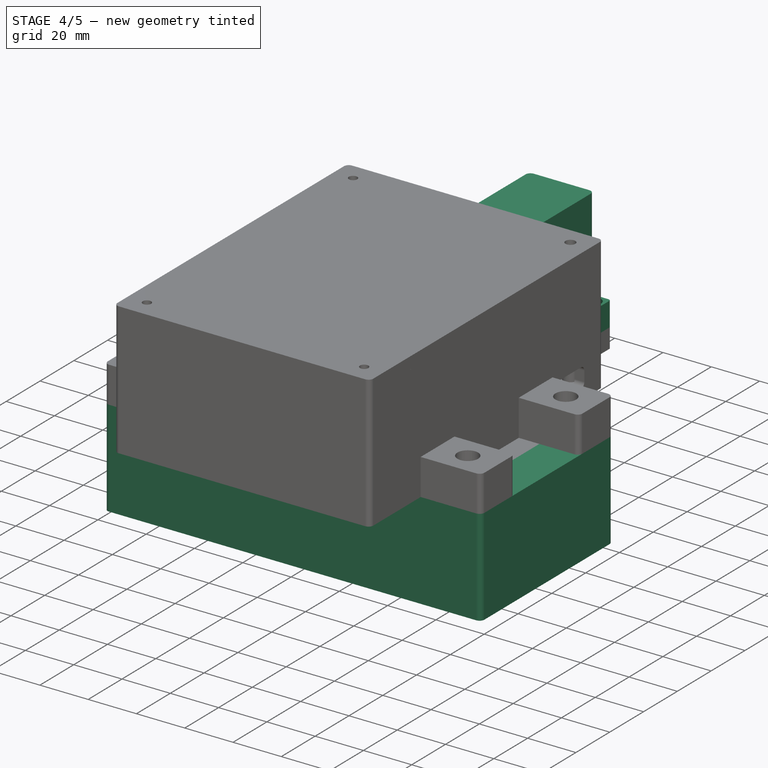
[diagram: stage 4 of 5 — iso view after this stage's code; geometry added in this stage tinted green]
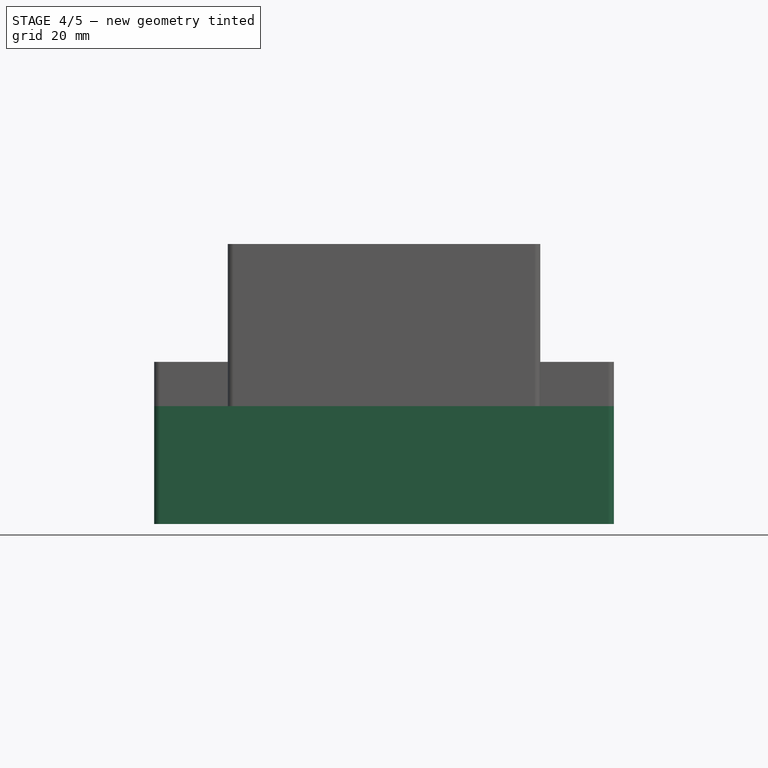
[diagram: stage 4 of 5 — front view after this stage's code; geometry added in this stage tinted green]
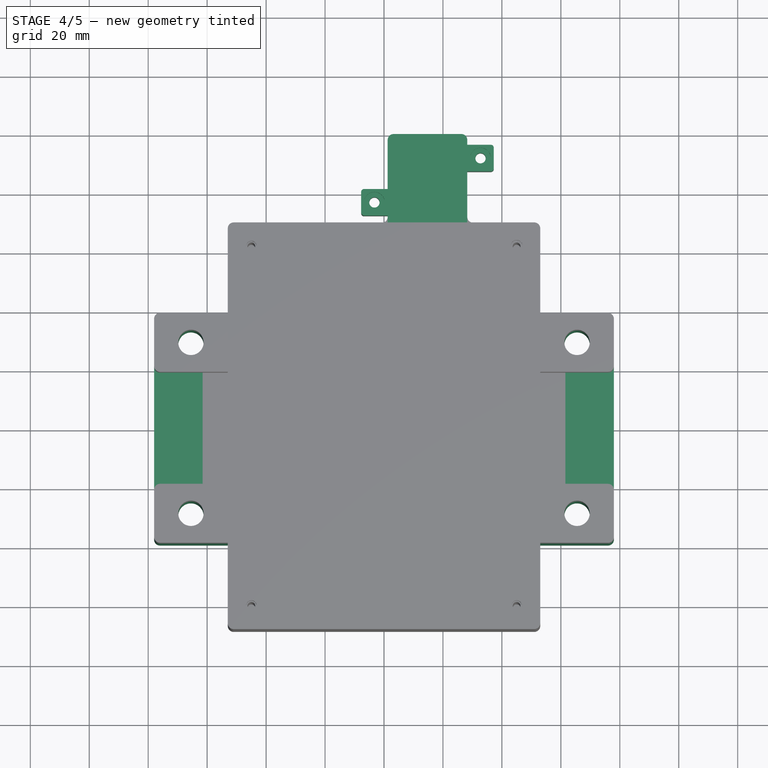
[diagram: stage 4 of 5 — top view after this stage's code; geometry added in this stage tinted green]
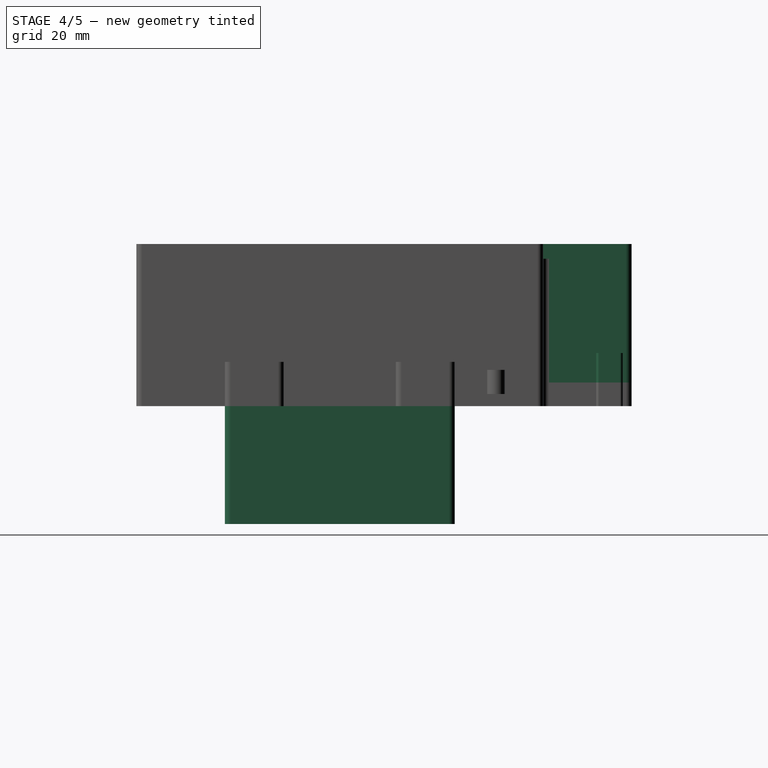
[diagram: stage 4 of 5 — right view after this stage's code; geometry added in this stage tinted green]
FEATURE [PartDesign::ShapeBinder] CopyPad  label="Copy Base Palte"
  Support = -> [Pad]
  TraceSupport = false
FEATURE [PartDesign::ShapeBinder] CopyPad004  label="Copy fix"
  Support = -> [Pad004]
  TraceSupport = false
FEATURE [Sketcher::SketchObject] Sketch013  label="main plate"
  ExternalGeometry = -> [CopyPad004,CopyPad]
  FullyConstrained = true
  MapMode = 5
  Placement = pos=(0,0,0) rot=(1,0,0;3.14159rad)
  Support = -> [CopyPad004]
  sketch-geometry (14):
    g0: ArcOfCircle CenterX=-76 CenterY=37 CenterZ=0 NormalX=0 NormalY=0 NormalZ=1 AngleXU=0 Radius=2 StartAngle=1.5708 EndAngle=3.14159
    g1: LineSegment StartX=-76 StartY=39 StartZ=0 EndX=76 EndY=39 EndZ=0
    g2: ArcOfCircle CenterX=76 CenterY=37 CenterZ=0 NormalX=0 NormalY=0 NormalZ=1 AngleXU=0 Radius=2 StartAngle=1.8e-15 EndAngle=1.5708
    g3: LineSegment StartX=78 StartY=37 StartZ=0 EndX=78 EndY=-37 EndZ=0
    g4: ArcOfCircle CenterX=76 CenterY=-37 CenterZ=0 NormalX=0 NormalY=0 NormalZ=1 AngleXU=0 Radius=2 StartAngle=4.71239 EndAngle=6.28319
    g5: LineSegment StartX=76 StartY=-39 StartZ=0 EndX=-76 EndY=-39 EndZ=0
    g6: ArcOfCircle CenterX=-76 CenterY=-37 CenterZ=0 NormalX=0 NormalY=0 NormalZ=1 AngleXU=0 Radius=2 StartAngle=3.14159 EndAngle=4.71239
    g7: LineSegment StartX=-78 StartY=-37 StartZ=0 EndX=-78 EndY=37 EndZ=0
    g8: GeomPoint X=-78 Y=39 Z=0
    g9: GeomPoint X=78 Y=-39 Z=0
    g10: Circle CenterX=65.5 CenterY=29 CenterZ=0 NormalX=0 NormalY=0 NormalZ=1 AngleXU=0 Radius=4.3
    g11: Circle CenterX=65.5 CenterY=-29 CenterZ=0 NormalX=0 NormalY=0 NormalZ=1 AngleXU=0 Radius=4.3
    g12: Circle CenterX=-65.5 CenterY=29 CenterZ=0 NormalX=0 NormalY=0 NormalZ=1 AngleXU=0 Radius=4.3
    g13: Circle CenterX=-65.5 CenterY=-29 CenterZ=0 NormalX=0 NormalY=0 NormalZ=1 AngleXU=0 Radius=4.3
  constraints (30):
    c: Tangent(g0,g1) = 1.5708
    c: Tangent(g1,g2) = 1.5708
    c: Tangent(g2,g3) = 1.5708
    c: Tangent(g3,g4) = 1.5708
    c: Tangent(g4,g5) = 1.5708
    c: Tangent(g5,g6) = 1.5708
    c: Tangent(g6,g7) = 1.5708
    c: Tangent(g7,g0) = 1.5708
    c: Horizontal(g1)
    c: Horizontal(g5)
    c: Vertical(g3)
    c: Vertical(g7)
    c: Equal(g0,g2)
    c: Equal(g2,g4)
    c: Equal(g4,g6)
    c: PointOnObject(g8,g1)
    c: PointOnObject(g8,g7)
    c: PointOnObject(g9,g3)
    c: PointOnObject(g9,g5)
    c: Equal(g6,g-11)
    c: Coincident(g5,g-12)
    c: Coincident(g1,g-20)
    c: Coincident(g10,g-24)
    c: Equal(g10,g-24)
    c: Coincident(g11,g-25)
    c: Equal(g-25,g11)
    c: Coincident(g12,g-23)
    c: Coincident(g13,g-22)
    c: Equal(g-23,g12)
    c: Equal(g13,g-22)
FEATURE [PartDesign::Pad] Pad006  label="main plate pad"
  Direction = (0,0,-1)
  Length = 40
  Length2 = 10
  Profile = -> Sketch013
  ReferenceAxis = -> Sketch013 [N_Axis]
  Type = 0
FEATURE [Sketcher::SketchObject] Sketch022  label="j-pole fixture"
  ExternalGeometry = -> [ShapeBinder001,ShapeBinder]
  FullyConstrained = true
  MapMode = 5
  Placement = pos=(0,0,55) rot=(0,0,1;0rad)
  Support = -> [Pad008]
  sketch-geometry (6):
    g0: LineSegment StartX=3.25 StartY=99 StartZ=0 EndX=26.25 EndY=99 EndZ=0
    g1: LineSegment StartX=28.25 StartY=97 StartZ=0 EndX=28.25 EndY=65 EndZ=0
    g2: LineSegment StartX=28.25 StartY=65 StartZ=0 EndX=1.25 EndY=65 EndZ=0
    g3: LineSegment StartX=1.25 StartY=65 StartZ=0 EndX=1.25 EndY=97 EndZ=0
    g4: ArcOfCircle CenterX=3.25 CenterY=97 CenterZ=0 NormalX=0 NormalY=0 NormalZ=1 AngleXU=0 Radius=2 StartAngle=1.5708 EndAngle=3.14159
    g5: ArcOfCircle CenterX=26.25 CenterY=97 CenterZ=0 NormalX=0 NormalY=0 NormalZ=1 AngleXU=0 Radius=2 StartAngle=-1.8e-15 EndAngle=1.5708
  constraints (13):
    c: Horizontal(g0)
    c: Vertical(g1)
    c: Coincident(g2,g1)
    c: Horizontal(g2)
    c: Coincident(g3,g2)
    c: Tangent(g0,g4) = 1.5708
    c: Tangent(g3,g4) = 1.5708
    c: Tangent(g0,g5) = 1.5708
    c: Tangent(g1,g5) = 1.5708
    c: Equal(g5,g-14)
    c: Coincident(g-7,g4)
    c: Coincident(g0,g-14)
    c: Coincident(g2,g-4)
FEATURE [PartDesign::Pad] Pad010  label="jpole fixture pad"
  BaseFeature = -> Pad009
  Direction = (0,0,1)
  Length = 47
  Length2 = 10
  Profile = -> Sketch022
  ReferenceAxis = -> Sketch022 [N_Axis]
  Reversed = true
  Type = 0
FEATURE [Sketcher::SketchObject] Sketch023  label="passage j-pole"
  ExternalGeometry = -> [ShapeBinder001]
  FullyConstrained = false
  MapMode = 5
  Placement = pos=(0,0,8) rot=(1,0,0;3.14159rad)
  Support = -> [Pad010]
  sketch-geometry (20):
    g0: ArcOfCircle CenterX=7.8 CenterY=-71.8 CenterZ=0 NormalX=0 NormalY=0 NormalZ=1 AngleXU=0 Radius=1.8 StartAngle=1.5708 EndAngle=3.14159
    g1: LineSegment StartX=7.8 StartY=-70 StartZ=0 EndX=21.8 EndY=-70 EndZ=0
    g2: ArcOfCircle CenterX=21.8 CenterY=-71.8 CenterZ=0 NormalX=0 NormalY=0 NormalZ=1 AngleXU=0 Radius=1.8 StartAngle=-1.8e-15 EndAngle=1.5708
    g3: LineSegment StartX=23.6 StartY=-71.8 StartZ=0 EndX=23.6 EndY=-123.151 EndZ=0
    g4: ArcOfCircle CenterX=21.8 CenterY=-123.151 CenterZ=0 NormalX=0 NormalY=0 NormalZ=1 AngleXU=0 Radius=1.8 StartAngle=4.71239 EndAngle=6.28319
    g5: LineSegment StartX=21.8 StartY=-124.951 StartZ=0 EndX=7.8 EndY=-124.951 EndZ=0
    g6: ArcOfCircle CenterX=7.8 CenterY=-123.151 CenterZ=0 NormalX=0 NormalY=0 NormalZ=1 AngleXU=0 Radius=1.8 StartAngle=3.14159 EndAngle=4.71239
    g7: LineSegment StartX=6 StartY=-123.151 StartZ=0 EndX=6 EndY=-71.8 EndZ=0
    g8: GeomPoint X=6 Y=-70 Z=0
    g9: GeomPoint X=23.6 Y=-124.951 Z=0
    g10: ArcOfCircle CenterX=10.1 CenterY=-74.1 CenterZ=0 NormalX=0 NormalY=0 NormalZ=1 AngleXU=0 Radius=1.8 StartAngle=1.5708 EndAngle=3.14159
    g11: LineSegment StartX=10.1 StartY=-72.3 StartZ=0 EndX=19.5 EndY=-72.3 EndZ=0
    g12: ArcOfCircle CenterX=19.5 CenterY=-74.1 CenterZ=0 NormalX=0 NormalY=0 NormalZ=1 AngleXU=0 Radius=1.8 StartAngle=-2.7e-15 EndAngle=1.5708
    g13: LineSegment StartX=21.3 StartY=-74.1 StartZ=0 EndX=21.3 EndY=-119.625 EndZ=0
    g14: ArcOfCircle CenterX=19.5 CenterY=-119.625 CenterZ=0 NormalX=0 NormalY=0 NormalZ=1 AngleXU=0 Radius=1.8 StartAngle=4.71239 EndAngle=6.28319
    g15: LineSegment StartX=19.5 StartY=-121.425 StartZ=0 EndX=10.1 EndY=-121.425 EndZ=0
    g16: ArcOfCircle CenterX=10.1 CenterY=-119.625 CenterZ=0 NormalX=0 NormalY=0 NormalZ=1 AngleXU=0 Radius=1.8 StartAngle=3.14159 EndAngle=4.71239
    g17: LineSegment StartX=8.3 StartY=-119.625 StartZ=0 EndX=8.3 EndY=-74.1 EndZ=0
    g18: GeomPoint X=8.3 Y=-72.3 Z=0
    g19: GeomPoint X=21.3 Y=-121.425 Z=0
  constraints (42):
    c: Tangent(g0,g1) = 1.5708
    c: Tangent(g1,g2) = 1.5708
    c: Tangent(g2,g3) = 1.5708
    c: Tangent(g3,g4) = 1.5708
    c: Tangent(g4,g5) = 1.5708
    c: Tangent(g5,g6) = 1.5708
    c: Tangent(g6,g7) = 1.5708
    c: Tangent(g7,g0) = 1.5708
    c: Horizontal(g1)
    c: Horizontal(g5)
    c: Vertical(g3)
    c: Vertical(g7)
    c: Equal(g0,g2)
    c: Equal(g2,g4)
    c: Equal(g4,g6)
    c: PointOnObject(g8,g1)
    c: PointOnObject(g8,g7)
    c: PointOnObject(g9,g3)
    c: PointOnObject(g9,g5)
    c: Coincident(g0,g-4)
    c: Coincident(g1,g-11)
    c: Tangent(g10,g11) = 1.5708
    c: Tangent(g11,g12) = 1.5708
    c: Tangent(g12,g13) = 1.5708
    c: Tangent(g13,g14) = 1.5708
    c: Tangent(g14,g15) = 1.5708
    c: Tangent(g15,g16) = 1.5708
    c: Tangent(g16,g17) = 1.5708
    c: Tangent(g17,g10) = 1.5708
    c: Horizontal(g11)
    c: Horizontal(g15)
    c: Vertical(g13)
    c: Vertical(g17)
    c: Equal(g10,g12)
    c: Equal(g12,g14)
    c: Equal(g14,g16)
    c: PointOnObject(g18,g11)
    c: PointOnObject(g18,g17)
    c: PointOnObject(g19,g13)
    c: PointOnObject(g19,g15)
    c: Coincident(g10,g-13)
    c: Coincident(g11,g-14)
FEATURE [PartDesign::Pocket] Pocket010  label="passage jpole pocket"
  BaseFeature = -> Pad010
  Direction = (0,0,1)
  Length = 1.5
  Length2 = 5
  Profile = -> Sketch023
  ReferenceAxis = -> Sketch023 [N_Axis]
  Type = 0
FEATURE [Sketcher::SketchObject] Sketch024  label="passage coax"
  ExternalGeometry = -> [ShapeBinder001]
  FullyConstrained = true
  MapMode = 5
  Placement = pos=(0,0,8) rot=(1,0,0;3.14159rad)
  Support = -> [Pad010]
  sketch-geometry (8):
    g0: LineSegment StartX=17.8 StartY=-65 StartZ=0 EndX=11.8 EndY=-65 EndZ=0
    g1: LineSegment StartX=11.8 StartY=-65 StartZ=0 EndX=11.8 EndY=-77.95 EndZ=0
    g2: LineSegment StartX=11.8 StartY=-77.95 StartZ=0 EndX=3 EndY=-77.95 EndZ=0
    g3: LineSegment StartX=3 StartY=-77.95 StartZ=0 EndX=3 EndY=-82.95 EndZ=0
    g4: LineSegment StartX=3 StartY=-82.95 StartZ=0 EndX=26.6 EndY=-82.95 EndZ=0
    g5: LineSegment StartX=26.6 StartY=-82.95 StartZ=0 EndX=26.6 EndY=-77.95 EndZ=0
    g6: LineSegment StartX=26.6 StartY=-77.95 StartZ=0 EndX=17.8 EndY=-77.95 EndZ=0
    g7: LineSegment StartX=17.8 StartY=-77.95 StartZ=0 EndX=17.8 EndY=-65 EndZ=0
  constraints (24):
    c: PointOnObject(g0,g-11)
    c: PointOnObject(g0,g-11)
    c: Coincident(g0,g1)
    c: Vertical(g1)
    c: Coincident(g1,g2)
    c: Horizontal(g2)
    c: Coincident(g2,g3)
    c: Coincident(g3,g4)
    c: Horizontal(g4)
    c: Coincident(g4,g5)
    c: Vertical(g5)
    c: Coincident(g5,g6)
    c: Horizontal(g6)
    c: Coincident(g6,g7)
    c: Vertical(g7)
    c: Coincident(g0,g7)
    c: Vertical(g2,g3)
    c: Vertical(g2,g-5)
    c: Vertical(g-10,g5)
    c: DistanceY(g3,g2) = 5
    c: Horizontal(g1,g6)
    c: DistanceX(g0,g0) = 6
    c: Equal(g2,g6)
    c: DistanceY(g-5,g2) = 1.25
FEATURE [PartDesign::Pocket] Pocket011  label="passage coax pocket"
  BaseFeature = -> Pocket010
  Direction = (0,0,1)
  Length = 5
  Length2 = 5
  Profile = -> Sketch024
  ReferenceAxis = -> Sketch024 [N_Axis]
  Type = 0
FEATURE [Sketcher::SketchObject] Sketch025
  ExternalGeometry = -> [ShapeBinder001]
  FullyConstrained = true
  MapMode = 5
  Placement = pos=(0,0,8) rot=(1,0,0;3.14159rad)
  Support = -> [Pad010]
  sketch-geometry (14):
    g0: LineSegment StartX=-7.75 StartY=-73 StartZ=0 EndX=-7.75 EndY=-80 EndZ=0
    g1: LineSegment StartX=-6.75 StartY=-81 StartZ=0 EndX=1.25 EndY=-81 EndZ=0
    g2: LineSegment StartX=1.25 StartY=-81 StartZ=0 EndX=1.25 EndY=-72 EndZ=0
    g3: LineSegment StartX=1.25 StartY=-72 StartZ=0 EndX=-6.75 EndY=-72 EndZ=0
    g4: ArcOfCircle CenterX=-6.75 CenterY=-73 CenterZ=0 NormalX=0 NormalY=0 NormalZ=1 AngleXU=0 Radius=1 StartAngle=1.5708 EndAngle=3.14159
    g5: ArcOfCircle CenterX=-6.75 CenterY=-80 CenterZ=0 NormalX=0 NormalY=0 NormalZ=1 AngleXU=0 Radius=1 StartAngle=3.14159 EndAngle=4.71239
    g6: LineSegment StartX=36.25 StartY=-87 StartZ=0 EndX=28.25 EndY=-87 EndZ=0
    g7: LineSegment StartX=28.25 StartY=-87 StartZ=0 EndX=28.25 EndY=-96 EndZ=0
    g8: LineSegment StartX=28.25 StartY=-96 StartZ=0 EndX=36.25 EndY=-96 EndZ=0
    g9: LineSegment StartX=37.25 StartY=-95 StartZ=0 EndX=37.25 EndY=-88 EndZ=0
    g10: ArcOfCircle CenterX=36.25 CenterY=-88 CenterZ=0 NormalX=0 NormalY=0 NormalZ=1 AngleXU=0 Radius=1 StartAngle=-3.6e-15 EndAngle=1.5708
    g11: ArcOfCircle CenterX=36.25 CenterY=-95 CenterZ=0 NormalX=0 NormalY=0 NormalZ=1 AngleXU=0 Radius=1 StartAngle=4.71239 EndAngle=6.28319
    g12: Circle CenterX=-3.25 CenterY=-76.5 CenterZ=0 NormalX=0 NormalY=0 NormalZ=1 AngleXU=0 Radius=1.75
    g13: Circle CenterX=32.75 CenterY=-91.5 CenterZ=0 NormalX=0 NormalY=0 NormalZ=1 AngleXU=0 Radius=1.75
  constraints (30):
    c: Vertical(g0)
    c: Coincident(g1,g2)
    c: Vertical(g2)
    c: Coincident(g2,g3)
    c: Horizontal(g3)
    c: Tangent(g0,g4) = -1.5708
    c: Tangent(g3,g4) = -1.5708
    c: Tangent(g0,g5) = -1.5708
    c: Tangent(g1,g5) = -1.5708
    c: Equal(g4,g-8)
    c: Coincident(g4,g-8)
    c: Coincident(g1,g-5)
    c: Coincident(g1,g-4)
    c: Horizontal(g6)
    c: Coincident(g6,g7)
    c: Vertical(g7)
    c: Coincident(g7,g8)
    c: Vertical(g9)
    c: Tangent(g6,g10) = -1.5708
    c: Tangent(g9,g10) = -1.5708
    c: Tangent(g8,g11) = -1.5708
    c: Tangent(g9,g11) = -1.5708
    c: Equal(g-10,g10)
    c: Coincident(g10,g-10)
    c: Coincident(g8,g-13)
    c: Coincident(g7,g-14)
    c: Coincident(g12,g-3)
    c: Equal(g-3,g12)
    c: Coincident(g13,g-15)
    c: Equal(g13,g-15)
FEATURE [PartDesign::Pad] Pad011
  BaseFeature = -> Pocket011
  Direction = (0,0,-1)
  Length = 10
  Length2 = 10
  Profile = -> Sketch025
  ReferenceAxis = -> Sketch025 [N_Axis]
  Reversed = true
  Type = 0
FEATURE [Sketcher::SketchObject] Sketch026
  ExternalGeometry = -> [Pad011]
  FullyConstrained = true
  MapMode = 5
  Placement = pos=(0,0,18) rot=(0,0,1;0rad)
  Support = -> [Pad011]
  sketch-geometry (2):
    g0: Circle CenterX=-3.25 CenterY=76.5 CenterZ=0 NormalX=0 NormalY=0 NormalZ=1 AngleXU=0 Radius=3.5
    g1: Circle CenterX=32.75 CenterY=91.5 CenterZ=0 NormalX=0 NormalY=0 NormalZ=1 AngleXU=0 Radius=3.5
  constraints (4):
    c: Coincident(g0,g-3)
    c: Coincident(g1,g-4)
    c: Diameter(g0) = 7
    c: Diameter(g1) = 7
FEATURE [PartDesign::Pocket] Pocket012
  BaseFeature = -> Pad011
  Direction = (0,0,-1)
  Length = 3.5
  Length2 = 5
  Profile = -> Sketch026
  ReferenceAxis = -> Sketch026 [N_Axis]
  Type = 0
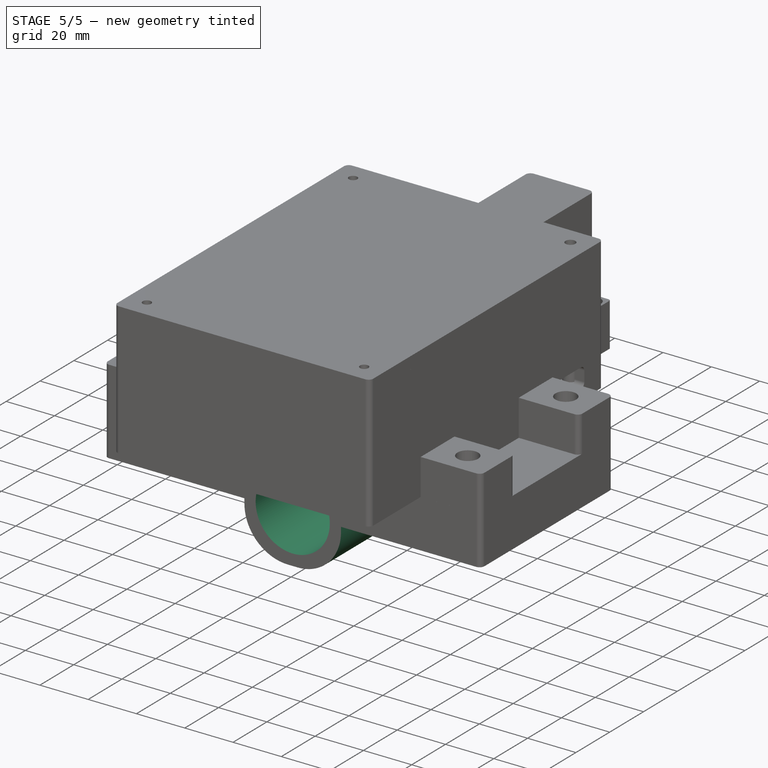
[diagram: stage 5 of 5 — iso view after this stage's code; geometry added in this stage tinted green]
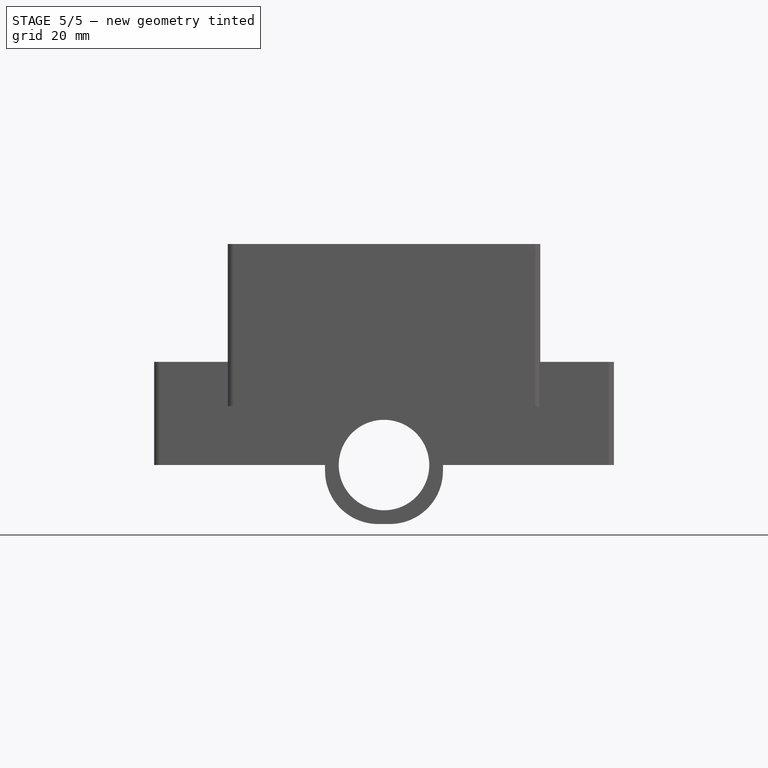
[diagram: stage 5 of 5 — front view after this stage's code; geometry added in this stage tinted green]
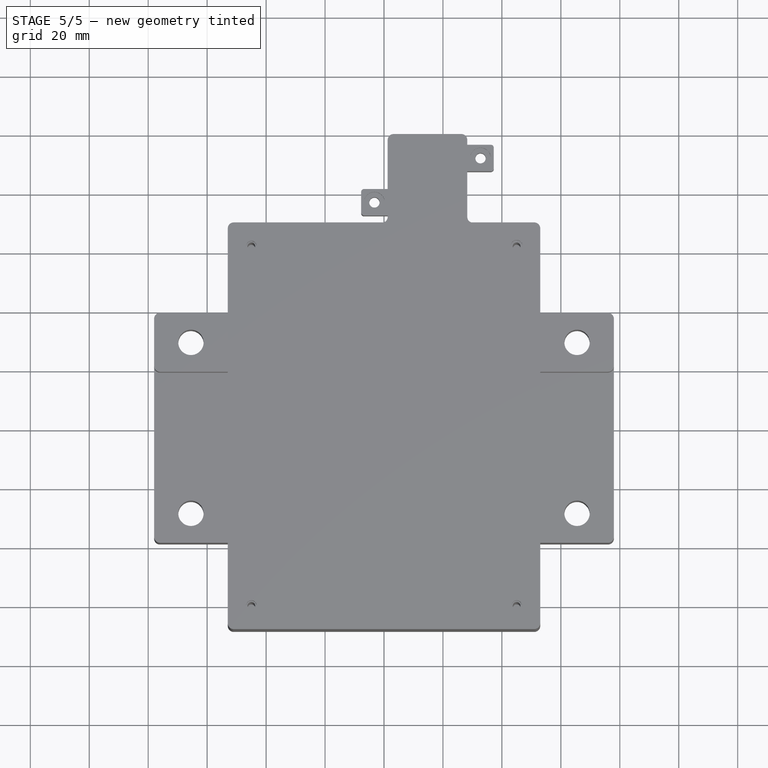
[diagram: stage 5 of 5 — top view after this stage's code; geometry added in this stage tinted green]
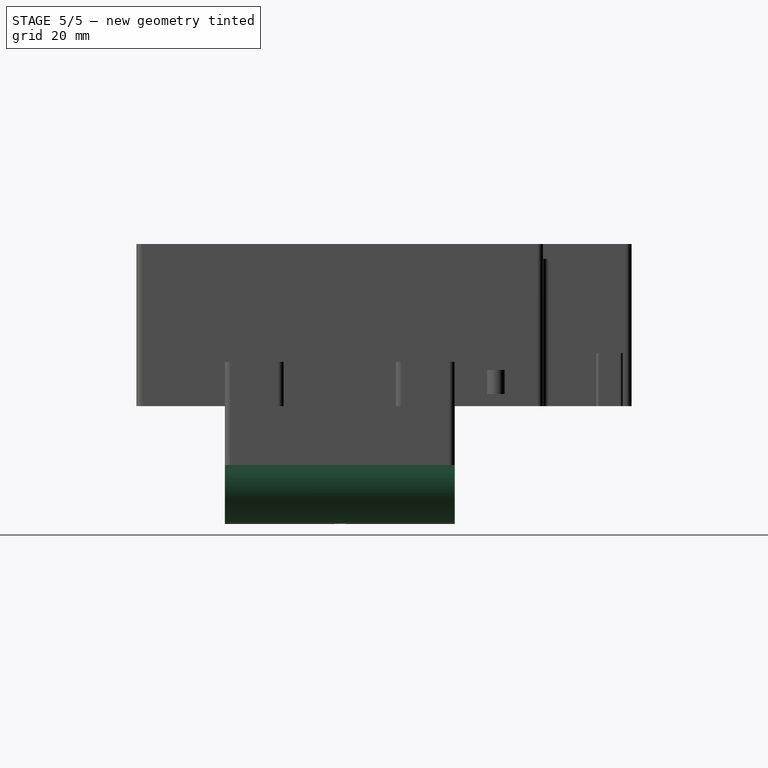
[diagram: stage 5 of 5 — right view after this stage's code; geometry added in this stage tinted green]
FEATURE [Sketcher::SketchObject] Sketch014  label="mast hole"
  ExternalGeometry = -> [Pad006]
  FullyConstrained = true
  MapMode = 5
  Placement = pos=(0,39,0) rot=(0,0.707107,0.707107;3.14159rad)
  Support = -> [Pad006]
  sketch-geometry (1):
    g0: Circle CenterX=0 CenterY=-20 CenterZ=0 NormalX=0 NormalY=0 NormalZ=1 AngleXU=0 Radius=15.35
  constraints (3):
    c: PointOnObject(g0,g-2)
    c: Diameter(g0) = 30.7
    c: DistanceY(g0,g-6) = 20
FEATURE [PartDesign::Pocket] Pocket006  label="mas thole pocket"
  BaseFeature = -> Pad006
  Direction = (0,-1,2e-16)
  Length = 100
  Length2 = 5
  Profile = -> Sketch014
  ReferenceAxis = -> Sketch014 [N_Axis]
  Type = 0
FEATURE [Sketcher::SketchObject] Sketch015  label="reduce base plate"
  ExternalGeometry = -> [Pad006]
  FullyConstrained = true
  MapMode = 5
  Placement = pos=(0,0,-40) rot=(1,0,0;3.14159rad)
  Support = -> [Pad006]
  sketch-geometry (12):
    g0: LineSegment StartX=-76 StartY=39 StartZ=0 EndX=-20 EndY=39 EndZ=0
    g1: LineSegment StartX=-20 StartY=39 StartZ=0 EndX=-20 EndY=-39 EndZ=0
    g2: LineSegment StartX=-20 StartY=-39 StartZ=0 EndX=-76 EndY=-39 EndZ=0
    g3: LineSegment StartX=-78 StartY=-37 StartZ=0 EndX=-78 EndY=37 EndZ=0
    g4: LineSegment StartX=20 StartY=39 StartZ=0 EndX=76 EndY=39 EndZ=0
    g5: LineSegment StartX=78 StartY=37 StartZ=0 EndX=78 EndY=-37 EndZ=0
    g6: LineSegment StartX=76 StartY=-39 StartZ=0 EndX=20 EndY=-39 EndZ=0
    g7: LineSegment StartX=20 StartY=-39 StartZ=0 EndX=20 EndY=39 EndZ=0
    g8: ArcOfCircle CenterX=76 CenterY=-37 CenterZ=0 NormalX=0 NormalY=0 NormalZ=1 AngleXU=0 Radius=2 StartAngle=4.71239 EndAngle=6.28319
    g9: ArcOfCircle CenterX=76 CenterY=37 CenterZ=0 NormalX=0 NormalY=0 NormalZ=1 AngleXU=0 Radius=2 StartAngle=1.2e-15 EndAngle=1.5708
    g10: ArcOfCircle CenterX=-76 CenterY=37 CenterZ=0 NormalX=0 NormalY=0 NormalZ=1 AngleXU=0 Radius=2 StartAngle=1.5708 EndAngle=3.14159
    g11: ArcOfCircle CenterX=-76 CenterY=-37 CenterZ=0 NormalX=0 NormalY=0 NormalZ=1 AngleXU=0 Radius=2 StartAngle=3.14159 EndAngle=4.71239
  constraints (31):
    c: Coincident(g0,g1)
    c: Coincident(g1,g2)
    c: Horizontal(g0)
    c: Horizontal(g2)
    c: Vertical(g1)
    c: Vertical(g3)
    c: Coincident(g6,g7)
    c: Coincident(g7,g4)
    c: Horizontal(g4)
    c: Horizontal(g6)
    c: Vertical(g5)
    c: Vertical(g7)
    c: Tangent(g5,g8) = 1.5708
    c: Tangent(g6,g8) = 1.5708
    c: Tangent(g4,g9) = 1.5708
    c: Tangent(g5,g9) = 1.5708
    c: Tangent(g0,g10) = 1.5708
    c: Tangent(g3,g10) = 1.5708
    c: Tangent(g2,g11) = 1.5708
    c: Tangent(g3,g11) = 1.5708
    c: Equal(g-7,g11)
    c: Equal(g-5,g10)
    c: Equal(g9,g-10)
    c: Equal(g-8,g8)
    c: Horizontal(g-8,g6)
    c: Horizontal(g4,g-10)
    c: Vertical(g5,g-10)
    c: Horizontal(g1,g-7)
    c: Vertical(g3,g-5)
    c: Symmetric(g0,g4,g-2)
    c: DistanceX(g0,g4) = 40
FEATURE [PartDesign::Pocket] Pocket007  label="reduce base plate pocket"
  BaseFeature = -> Pocket006
  Direction = (0,0,1)
  Length = 20
  Length2 = 5
  Profile = -> Sketch015
  ReferenceAxis = -> Sketch015 [N_Axis]
  Type = 0
FEATURE [PartDesign::Fillet] Fillet
  Base = -> Pocket007 [Edge50]
  BaseFeature = -> Pocket007
  Radius = 18
  SupportTransform = false
  UseAllEdges = false
FEATURE [PartDesign::Fillet] Fillet001
  Base = -> Fillet [Edge23]
  BaseFeature = -> Fillet
  Radius = 18
  SupportTransform = false
  UseAllEdges = false
FEATURE [Sketcher::SketchObject] Sketch016  label="hex screw hole"
  ExternalGeometry = -> [Pocket007]
  FullyConstrained = true
  MapMode = 5
  Placement = pos=(0,0,-20) rot=(1,0,0;3.14159rad)
  Support = -> [Pocket007]
  sketch-geometry (28):
    g0: LineSegment StartX=-58.95 StartY=25.2184 StartZ=0 EndX=-58.95 EndY=32.7816 EndZ=0
    g1: LineSegment StartX=-58.95 StartY=32.7816 StartZ=0 EndX=-65.5 EndY=36.5633 EndZ=0
    g2: LineSegment StartX=-65.5 StartY=36.5633 StartZ=0 EndX=-72.05 EndY=32.7816 EndZ=0
    g3: LineSegment StartX=-72.05 StartY=32.7816 StartZ=0 EndX=-72.05 EndY=25.2184 EndZ=0
    g4: LineSegment StartX=-72.05 StartY=25.2184 StartZ=0 EndX=-65.5 EndY=21.4367 EndZ=0
    g5: LineSegment StartX=-65.5 StartY=21.4367 StartZ=0 EndX=-58.95 EndY=25.2184 EndZ=0
    g6: Circle CenterX=-65.5 CenterY=29 CenterZ=0 NormalX=0 NormalY=0 NormalZ=1 AngleXU=0 Radius=7.56329
    g7: LineSegment StartX=-58.95 StartY=-32.7816 StartZ=0 EndX=-58.95 EndY=-25.2184 EndZ=0
    g8: LineSegment StartX=-58.95 StartY=-25.2184 StartZ=0 EndX=-65.5 EndY=-21.4367 EndZ=0
    g9: LineSegment StartX=-65.5 StartY=-21.4367 StartZ=0 EndX=-72.05 EndY=-25.2184 EndZ=0
    g10: LineSegment StartX=-72.05 StartY=-25.2184 StartZ=0 EndX=-72.05 EndY=-32.7816 EndZ=0
    g11: LineSegment StartX=-72.05 StartY=-32.7816 StartZ=0 EndX=-65.5 EndY=-36.5633 EndZ=0
    g12: LineSegment StartX=-65.5 StartY=-36.5633 StartZ=0 EndX=-58.95 EndY=-32.7816 EndZ=0
    g13: Circle CenterX=-65.5 CenterY=-29 CenterZ=0 NormalX=0 NormalY=0 NormalZ=1 AngleXU=0 Radius=7.56329
    g14: LineSegment StartX=58.95 StartY=25.2184 StartZ=0 EndX=65.5 EndY=21.4367 EndZ=0
    g15: LineSegment StartX=65.5 StartY=21.4367 StartZ=0 EndX=72.05 EndY=25.2184 EndZ=0
    g16: LineSegment StartX=72.05 StartY=25.2184 StartZ=0 EndX=72.05 EndY=32.7816 EndZ=0
    g17: LineSegment StartX=72.05 StartY=32.7816 StartZ=0 EndX=65.5 EndY=36.5633 EndZ=0
    g18: LineSegment StartX=65.5 StartY=36.5633 StartZ=0 EndX=58.95 EndY=32.7816 EndZ=0
    g19: LineSegment StartX=58.95 StartY=32.7816 StartZ=0 EndX=58.95 EndY=25.2184 EndZ=0
    g20: Circle CenterX=65.5 CenterY=29 CenterZ=0 NormalX=0 NormalY=0 NormalZ=1 AngleXU=0 Radius=7.56329
    g21: LineSegment StartX=58.95 StartY=-32.7816 StartZ=0 EndX=65.5 EndY=-36.5633 EndZ=0
    g22: LineSegment StartX=65.5 StartY=-36.5633 StartZ=0 EndX=72.05 EndY=-32.7816 EndZ=0
    g23: LineSegment StartX=72.05 StartY=-32.7816 StartZ=0 EndX=72.05 EndY=-25.2184 EndZ=0
    g24: LineSegment StartX=72.05 StartY=-25.2184 StartZ=0 EndX=65.5 EndY=-21.4367 EndZ=0
    g25: LineSegment StartX=65.5 StartY=-21.4367 StartZ=0 EndX=58.95 EndY=-25.2184 EndZ=0
    g26: LineSegment StartX=58.95 StartY=-25.2184 StartZ=0 EndX=58.95 EndY=-32.7816 EndZ=0
    g27: Circle CenterX=65.5 CenterY=-29 CenterZ=0 NormalX=0 NormalY=0 NormalZ=1 AngleXU=0 Radius=7.56329
  constraints (64):
    c: Coincident(g0,g1)
    c: Coincident(g1,g2)
    c: Coincident(g2,g3)
    c: Coincident(g3,g4)
    c: Coincident(g4,g5)
    c: Coincident(g5,g0)
    c: Equal(g0, g1-g5) x5
    c: PointOnObject(g0,g6)
    c: PointOnObject(g1,g6)
    c: PointOnObject(g2,g6)
    c: PointOnObject(g3,g6)
    c: PointOnObject(g4,g6)
    c: PointOnObject(g5,g6)
    c: Coincident(g6,g-4)
    c: Coincident(g7,g8)
    c: Coincident(g8,g9)
    c: Coincident(g9,g10)
    c: Coincident(g10,g11)
    c: Coincident(g11,g12)
    c: Coincident(g12,g7)
    c: Equal(g7, g8-g12) x5
    c: PointOnObject(g7,g13)
    c: PointOnObject(g8,g13)
    c: PointOnObject(g9,g13)
    c: PointOnObject(g10,g13)
    c: PointOnObject(g11,g13)
    c: PointOnObject(g12,g13)
    c: Coincident(g13,g-5)
    c: Coincident(g14,g15)
    c: Coincident(g15,g16)
    c: Coincident(g16,g17)
    c: Coincident(g17,g18)
    c: Coincident(g18,g19)
    c: Coincident(g19,g14)
    c: Equal(g14, g15-g19) x5
    c: PointOnObject(g14,g20)
    c: PointOnObject(g15,g20)
    c: PointOnObject(g16,g20)
    c: PointOnObject(g17,g20)
    c: PointOnObject(g18,g20)
    c: PointOnObject(g19,g20)
    c: Coincident(g20,g-7)
    c: Coincident(g21,g22)
    c: Coincident(g22,g23)
    c: Coincident(g23,g24)
    c: Coincident(g24,g25)
    c: Coincident(g25,g26)
    c: Coincident(g26,g21)
    c: Equal(g21, g22-g26) x5
    c: PointOnObject(g21,g27)
    c: PointOnObject(g22,g27)
    c: PointOnObject(g23,g27)
    c: PointOnObject(g24,g27)
    c: PointOnObject(g25,g27)
    c: PointOnObject(g26,g27)
    c: Coincident(g27,g-6)
    c: Vertical(g3)
    c: Vertical(g10)
    c: DistanceX(g3,g0) = 13.1
    c: DistanceX(g10,g7) = 13.1
    c: Vertical(g23)
    c: Vertical(g16)
    c: DistanceX(g21,g22) = 13.1
    c: DistanceX(g14,g15) = 13.1
FEATURE [PartDesign::Pocket] Pocket008  label="hex screw hole pocket"
  BaseFeature = -> Fillet001
  Direction = (0,0,1)
  Length = 6.5
  Length2 = 5
  Profile = -> Sketch016
  ReferenceAxis = -> Sketch016 [N_Axis]
  Type = 0
FEATURE [Sketcher::SketchObject] Sketch017  label="host mad threaded hole"
  FullyConstrained = true
  MapMode = 5
  Placement = pos=(0,0,-40) rot=(1,0,0;3.14159rad)
  Support = -> [Pocket008]
  sketch-geometry (1):
    g0: Circle CenterX=0 CenterY=0 CenterZ=0 NormalX=0 NormalY=0 NormalZ=1 AngleXU=0 Radius=0.5
  constraints (2):
    c: Coincident(g0,g-1)
    c: Diameter(g0) = 1
FEATURE [PartDesign::Hole] Hole  label="Hol mast therrad holee"
  BaseFeature = -> Pocket008
  CustomThreadClearance = 0
  Depth = 25
  DepthType = 0
  Diameter = 6.828
  DrillForDepth = false
  DrillPoint = 0
  DrillPointAngle = 118
  HoleCutCountersinkAngle = 90
  HoleCutCustomValues = false
  HoleCutDepth = 0
  HoleCutDiameter = 0
  HoleCutType = 0
  ModelThread = true
  Profile = -> Sketch017
  Tapered = false
  TaperedAngle = 90
  ThreadClass = 0
  ThreadDepth = 25
  ThreadDepthType = 0
  ThreadDirection = 0
  ThreadFit = 0
  ThreadSize = 16
  ThreadType = 1
  Threaded = true
  UseCustomThreadClearance = false
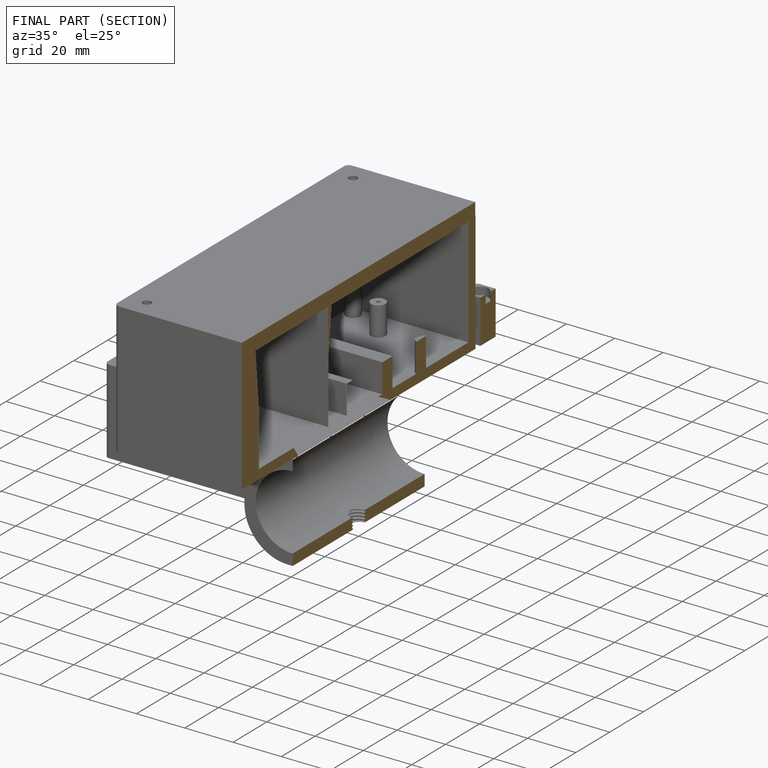
[diagram: finished part — half-section view (interior)]
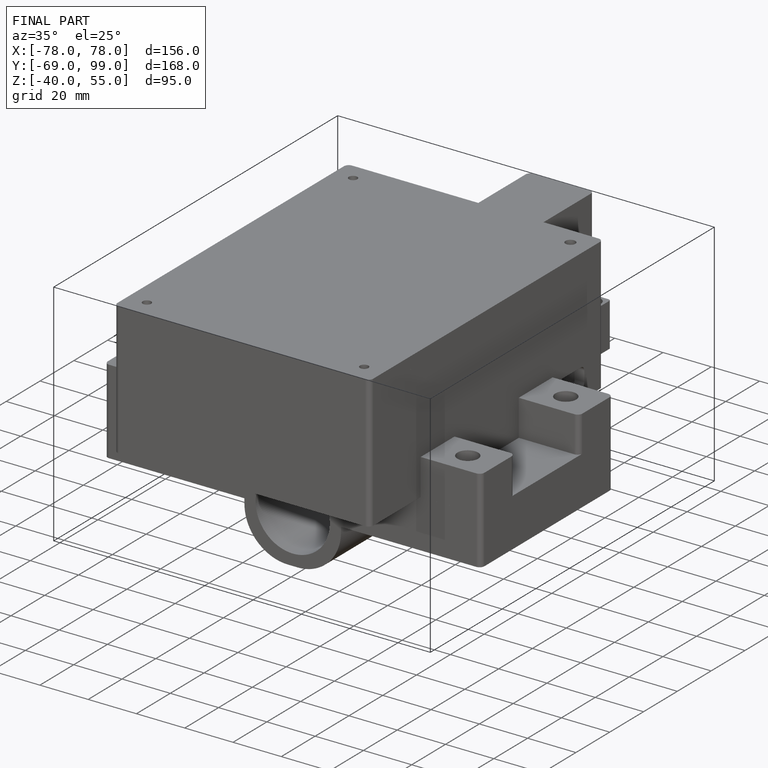
[diagram: finished part — iso view with bounding-box wireframe]
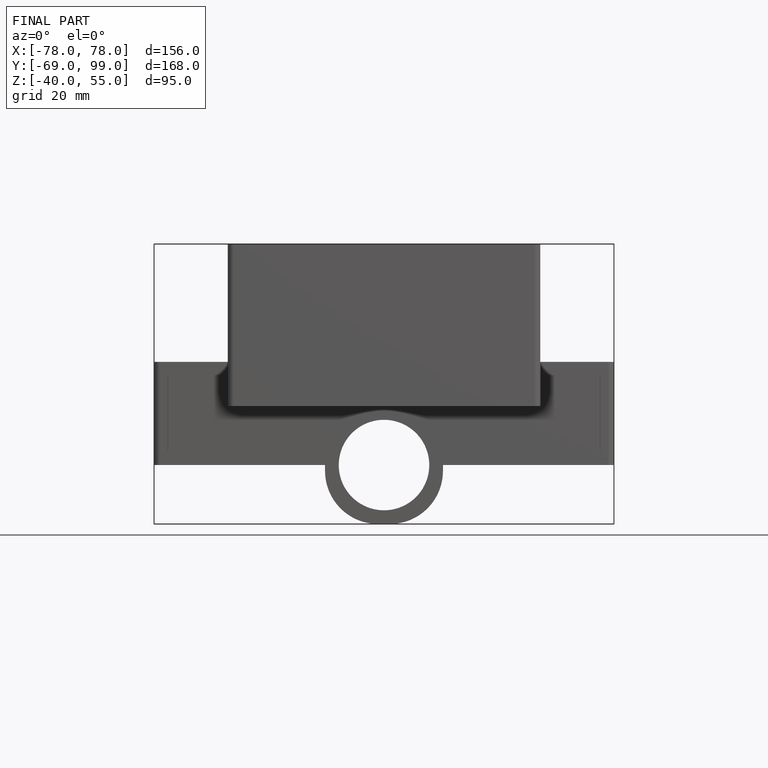
[diagram: finished part — front view with bounding-box wireframe]
